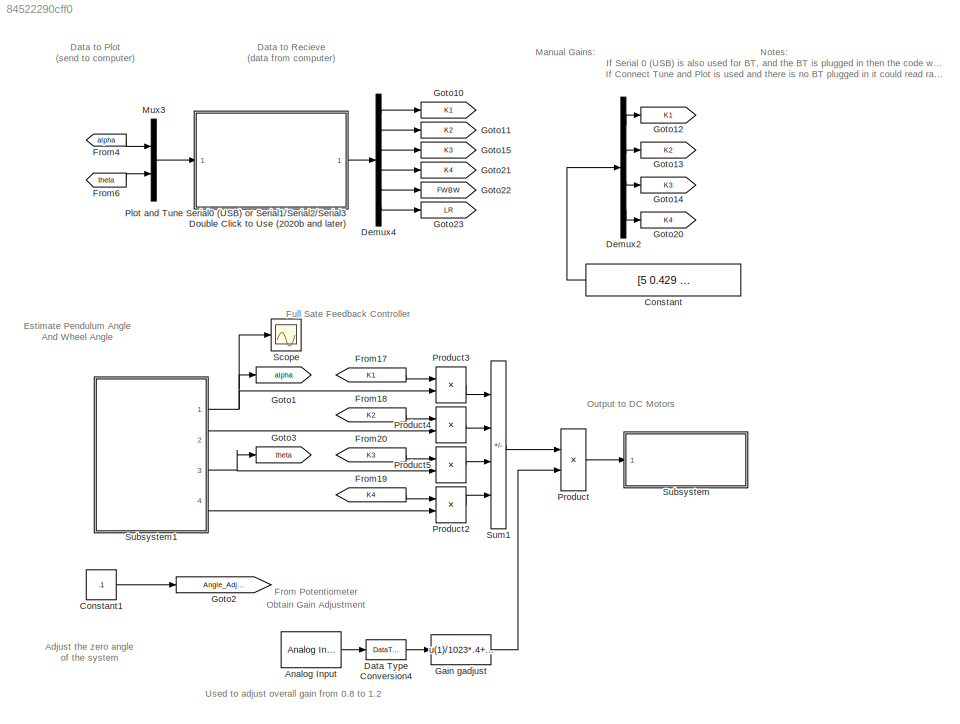
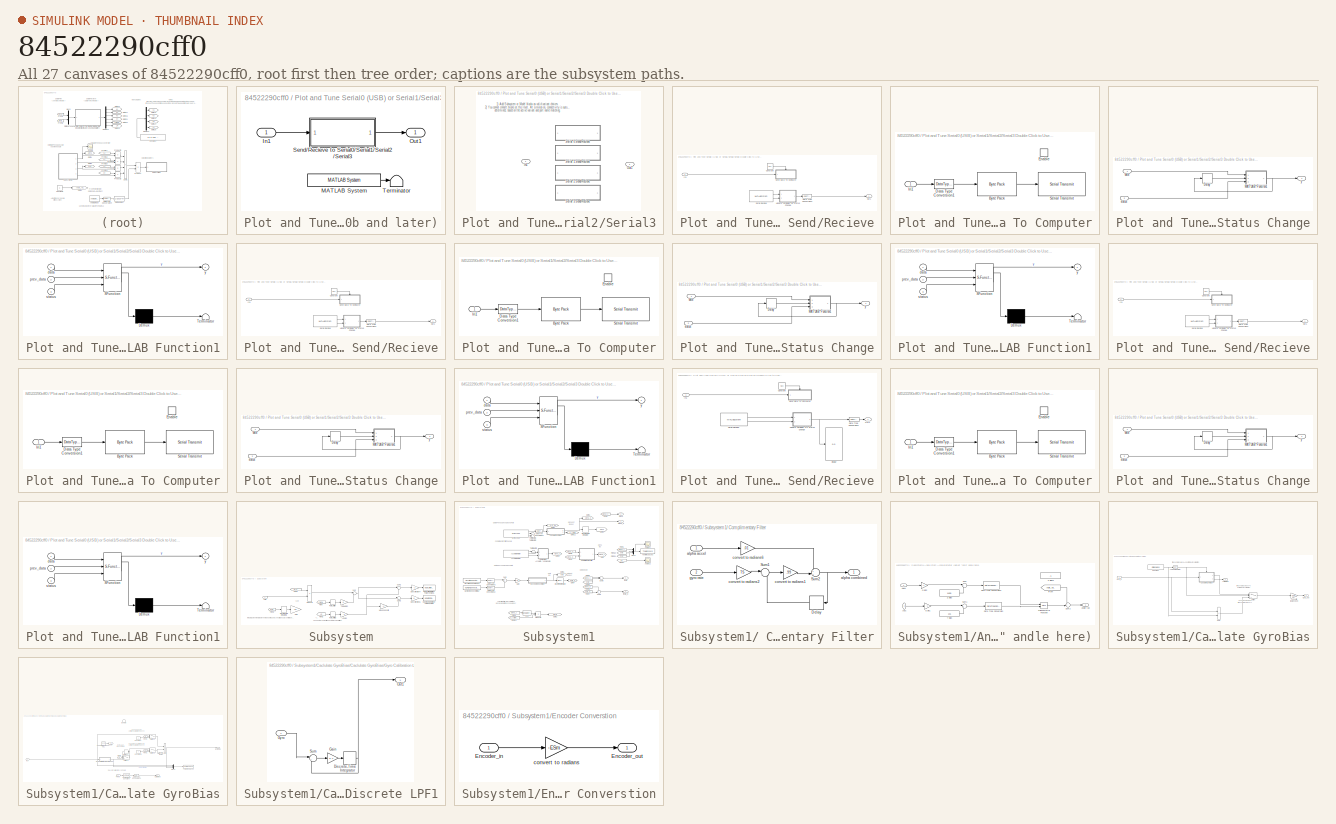
[diagram: thumbnail index - all 27 canvases of the model, root first then tree order]
MODEL slx_84522290cff0
KIND model
CONFIG AbsTol = auto
CONFIG EnableMultiTasking = on
CONFIG FixedStep = auto
CONFIG MaxStep = auto
CONFIG MinStep = auto
CONFIG PostLoadFcn = TS=.007;\n
CONFIG RelTol = 1e-3
CONFIG SampleTimeConstraint = Unconstrained
CONFIG SolverName = ode45
CONFIG StartTime = 0.0
CONFIG StopTime = 10.0
BLOCK [Reference] Analog Input  REF=arduinolib/Analog Input
  Ports = [0, 1]
  SourceBlock = arduinolib/Analog Input
  SourceProductBaseCode = ARDUINO
  SourceType = Arduino Analog Input
BLOCK [Constant] Constant
  Commented = on
  NameLocation = top
  OutDataTypeStr = single
  Value = [5  0.429  0.048   0.32 ]
BLOCK [Constant] Constant1
  Value = .1
BLOCK [DataTypeConversion] Data Type Conversion4
  NameLocation = top
  OutDataTypeStr = single
  RndMeth = Floor
  SaturateOnIntegerOverflow = off
BLOCK [Demux] Demux2
  Commented = on
  Ports = [1, 4]
BLOCK [Demux] Demux4
  Outputs = 6
  Ports = [1, 6]
BLOCK [From] From17
  GotoTag = K1
BLOCK [From] From18
  GotoTag = K2
BLOCK [From] From19
  GotoTag = K4
BLOCK [From] From20
  GotoTag = K3
BLOCK [From] From4
  GotoTag = alpha
BLOCK [From] From6
  GotoTag = theta
  IconDisplay = Signal name
BLOCK [Fcn] Gain gadjust
  Expr = u(1)/1023*.4+.8
BLOCK [Goto] Goto1
  GotoTag = alpha
BLOCK [Goto] Goto10
  GotoTag = K1
BLOCK [Goto] Goto11
  GotoTag = K2
BLOCK [Goto] Goto12
  Commented = on
  GotoTag = K1
BLOCK [Goto] Goto13
  Commented = on
  GotoTag = K2
BLOCK [Goto] Goto14
  Commented = on
  GotoTag = K3
BLOCK [Goto] Goto15
  GotoTag = K3
BLOCK [Goto] Goto2
  GotoTag = Angle_Adjust
  TagVisibility = global
BLOCK [Goto] Goto20
  Commented = on
  GotoTag = K4
BLOCK [Goto] Goto21
  GotoTag = K4
BLOCK [Goto] Goto22
  GotoTag = FWBW
  TagVisibility = global
BLOCK [Goto] Goto23
  GotoTag = LR
  TagVisibility = global
BLOCK [Goto] Goto3
  GotoTag = theta
BLOCK [Mux] Mux3
  DisplayOption = bar
  Inputs = 2
  Ports = [2, 1]
BLOCK [SubSystem] Plot and Tune Serial0 (USB) or Serial1//Serial2//Serial3 Double Click to Use (2020b and later)
  Ports = [1, 1]
  RequestExecContextInheritance = off
BLOCK [Inport] Plot and Tune Serial0 (USB) or Serial1//Serial2//Serial3 Double Click to Use (2020b and later)/In1
BLOCK [Reference] Plot and Tune Serial0 (USB) or Serial1//Serial2//Serial3 Double Click to Use (2020b and later)/MATLAB System  REF=RASPlib/Double Click to
Plot Serial Data/MATLAB System
  Ports = [0, 1]
  SourceBlock = RASPlib/Double Click to\nPlot Serial Data/MATLAB System
  SourceProductName = Rensselaer Arduino Support Package
  SourceType = soSendDataStartString
BLOCK [Outport] Plot and Tune Serial0 (USB) or Serial1//Serial2//Serial3 Double Click to Use (2020b and later)/Out1
BLOCK [SubSystem] Plot and Tune Serial0 (USB) or Serial1//Serial2//Serial3 Double Click to Use (2020b and later)/Send//Recieve to Serial0//Serial1//Serial2//Serial3
  Ports = [1, 1]
  RequestExecContextInheritance = off
  Variant = on
BLOCK [Inport] Plot and Tune Serial0 (USB) or Serial1//Serial2//Serial3 Double Click to Use (2020b and later)/Send//Recieve to Serial0//Serial1//Serial2//Serial3/In1
BLOCK [Outport] Plot and Tune Serial0 (USB) or Serial1//Serial2//Serial3 Double Click to Use (2020b and later)/Send//Recieve to Serial0//Serial1//Serial2//Serial3/Out1
BLOCK [SubSystem] Plot and Tune Serial0 (USB) or Serial1//Serial2//Serial3 Double Click to Use (2020b and later)/Send//Recieve to Serial0//Serial1//Serial2//Serial3/Serial 0 Send//Recieve
  Ports = [1, 1]
  RequestExecContextInheritance = off
  VariantControl = Ard_Serial==0
BLOCK [Constant] Plot and Tune Serial0 (USB) or Serial1//Serial2//Serial3 Double Click to Use (2020b and later)/Send//Recieve to Serial0//Serial1//Serial2//Serial3/Serial 0 Send//Recieve/Constant
  Value = Ncx
BLOCK [DataTypeConversion] Plot and Tune Serial0 (USB) or Serial1//Serial2//Serial3 Double Click to Use (2020b and later)/Send//Recieve to Serial0//Serial1//Serial2//Serial3/Serial 0 Send//Recieve/Data Type Conversion4
  OutDataTypeStr = single
  RndMeth = Floor
  SaturateOnIntegerOverflow = off
BLOCK [Inport] Plot and Tune Serial0 (USB) or Serial1//Serial2//Serial3 Double Click to Use (2020b and later)/Send//Recieve to Serial0//Serial1//Serial2//Serial3/Serial 0 Send//Recieve/In1
BLOCK [Outport] Plot and Tune Serial0 (USB) or Serial1//Serial2//Serial3 Double Click to Use (2020b and later)/Send//Recieve to Serial0//Serial1//Serial2//Serial3/Serial 0 Send//Recieve/Out1
BLOCK [SubSystem] Plot and Tune Serial0 (USB) or Serial1//Serial2//Serial3 Double Click to Use (2020b and later)/Send//Recieve to Serial0//Serial1//Serial2//Serial3/Serial 0 Send//Recieve/Send Data To Computer
  Ports = [1, 0, 1]
  RequestExecContextInheritance = off
  TreatAsAtomicUnit = on
BLOCK [Reference] Plot and Tune Serial0 (USB) or Serial1//Serial2//Serial3 Double Click to Use (2020b and later)/Send//Recieve to Serial0//Serial1//Serial2//Serial3/Serial 0 Send//Recieve/Send Data To Computer/Byte Pack  REF=svdutilitieslib/Byte Pack
  Ports = [1, 1]
  SourceBlock = svdutilitieslib/Byte Pack
  SourceProductBaseCode = ANDROID,ARDUINO,ML_ARDUINO,ECCORTEXA,ECCORTEXR,SC_BEAGLEBONE_BLUE,EC_FREEDOM_BOARD,EC_FRDM_K64F,INTEL_BLOCKSET,JETSONCPU,MICROBIT,NUCLEO,NVIDIA,PX4AUTOPILOTS,RASPPIIO,STMICRODIS,TIC2000,XILINX_BLOCKSET  <repeated x4 — deduplicated; at blocks: Byte Pack>
  SourceType = Byte pack
BLOCK [DataTypeConversion] Plot and Tune Serial0 (USB) or Serial1//Serial2//Serial3 Double Click to Use (2020b and later)/Send//Recieve to Serial0//Serial1//Serial2//Serial3/Serial 0 Send//Recieve/Send Data To Computer/Data Type Conversion1
  OutDataTypeStr = single
  RndMeth = Floor
  SaturateOnIntegerOverflow = off
BLOCK [EnablePort] Plot and Tune Serial0 (USB) or Serial1//Serial2//Serial3 Double Click to Use (2020b and later)/Send//Recieve to Serial0//Serial1//Serial2//Serial3/Serial 0 Send//Recieve/Send Data To Computer/Enable
  Ports = []
BLOCK [Inport] Plot and Tune Serial0 (USB) or Serial1//Serial2//Serial3 Double Click to Use (2020b and later)/Send//Recieve to Serial0//Serial1//Serial2//Serial3/Serial 0 Send//Recieve/Send Data To Computer/In1
BLOCK [Reference] Plot and Tune Serial0 (USB) or Serial1//Serial2//Serial3 Double Click to Use (2020b and later)/Send//Recieve to Serial0//Serial1//Serial2//Serial3/Serial 0 Send//Recieve/Send Data To Computer/Serial Transmit  REF=arduinolib/Serial Transmit
  Ports = [1]
  SourceBlock = arduinolib/Serial Transmit
  SourceProductBaseCode = ARDUINO
  SourceType = Arduino Serial Transmit
BLOCK [MATLABSystem] Plot and Tune Serial0 (USB) or Serial1//Serial2//Serial3 Double Click to Use (2020b and later)/Send//Recieve to Serial0//Serial1//Serial2//Serial3/Serial 0 Send//Recieve/Serial Receive
  DataType = double
  Datalength = Datalength
  InitFcn = %codertarget.arduinobase.blocks.arduinoBlockInitFcnCallback(gcbh);\n%codertarget.arduinobase.blocks.registerSerialBlock(gcbh);
  MaskDisplay = disp('codertarget.arduinobase.internal.arduino_SerialRead');\nport_label('output',1,'data');\nport_label('output',2,'status');
  MaskType = Arduino Serial Receive
  Ports = [0, 2]
  Protocol = 0
  SampleTime = SampleTime
  System = codertarget.arduinobase.internal.arduino_SerialRead
  isARMArch = off
  portNumber = portNumber
BLOCK [SubSystem] Plot and Tune Serial0 (USB) or Serial1//Serial2//Serial3 Double Click to Use (2020b and later)/Send//Recieve to Serial0//Serial1//Serial2//Serial3/Serial 0 Send//Recieve/Update  Variables On Status Change
  Ports = [2, 1]
  RequestExecContextInheritance = off
BLOCK [Delay] Plot and Tune Serial0 (USB) or Serial1//Serial2//Serial3 Double Click to Use (2020b and later)/Send//Recieve to Serial0//Serial1//Serial2//Serial3/Serial 0 Send//Recieve/Update  Variables On Status Change/Delay
  DelayLength = 1
  InitialCondition = Data0
  InputPortMap = u0
  Ports = [1, 1]
BLOCK [SubSystem] Plot and Tune Serial0 (USB) or Serial1//Serial2//Serial3 Double Click to Use (2020b and later)/Send//Recieve to Serial0//Serial1//Serial2//Serial3/Serial 0 Send//Recieve/Update  Variables On Status Change/MATLAB Function1
  ErrorFcn = Stateflow.Translate.translate
  PermitHierarchicalResolution = ExplicitOnly
  Ports = [3, 1]
  RequestExecContextInheritance = off
  SFBlockType = MATLAB Function
  TreatAsAtomicUnit = on
BLOCK [Demux] Plot and Tune Serial0 (USB) or Serial1//Serial2//Serial3 Double Click to Use (2020b and later)/Send//Recieve to Serial0//Serial1//Serial2//Serial3/Serial 0 Send//Recieve/Update  Variables On Status Change/MATLAB Function1/ Demux 
  Outputs = 1
  Ports = [1, 1]
BLOCK [S-Function] Plot and Tune Serial0 (USB) or Serial1//Serial2//Serial3 Double Click to Use (2020b and later)/Send//Recieve to Serial0//Serial1//Serial2//Serial3/Serial 0 Send//Recieve/Update  Variables On Status Change/MATLAB Function1/ SFunction 
  EnableBusSupport = on
  FunctionName = sf_sfun
  PortCounts = [3 2]
  Ports = [3, 2]
  SFcnIsStateOwnerBlock = off
  SFunctionDeploymentMode = off
  Tag = Stateflow S-Function 1
BLOCK [Terminator] Plot and Tune Serial0 (USB) or Serial1//Serial2//Serial3 Double Click to Use (2020b and later)/Send//Recieve to Serial0//Serial1//Serial2//Serial3/Serial 0 Send//Recieve/Update  Variables On Status Change/MATLAB Function1/ Terminator 
BLOCK [Inport] Plot and Tune Serial0 (USB) or Serial1//Serial2//Serial3 Double Click to Use (2020b and later)/Send//Recieve to Serial0//Serial1//Serial2//Serial3/Serial 0 Send//Recieve/Update  Variables On Status Change/MATLAB Function1/data
BLOCK [Inport] Plot and Tune Serial0 (USB) or Serial1//Serial2//Serial3 Double Click to Use (2020b and later)/Send//Recieve to Serial0//Serial1//Serial2//Serial3/Serial 0 Send//Recieve/Update  Variables On Status Change/MATLAB Function1/prev_data
  Port = 2
BLOCK [Inport] Plot and Tune Serial0 (USB) or Serial1//Serial2//Serial3 Double Click to Use (2020b and later)/Send//Recieve to Serial0//Serial1//Serial2//Serial3/Serial 0 Send//Recieve/Update  Variables On Status Change/MATLAB Function1/status
  Port = 3
BLOCK [Outport] Plot and Tune Serial0 (USB) or Serial1//Serial2//Serial3 Double Click to Use (2020b and later)/Send//Recieve to Serial0//Serial1//Serial2//Serial3/Serial 0 Send//Recieve/Update  Variables On Status Change/MATLAB Function1/y
BLOCK [Inport] Plot and Tune Serial0 (USB) or Serial1//Serial2//Serial3 Double Click to Use (2020b and later)/Send//Recieve to Serial0//Serial1//Serial2//Serial3/Serial 0 Send//Recieve/Update  Variables On Status Change/data
BLOCK [Inport] Plot and Tune Serial0 (USB) or Serial1//Serial2//Serial3 Double Click to Use (2020b and later)/Send//Recieve to Serial0//Serial1//Serial2//Serial3/Serial 0 Send//Recieve/Update  Variables On Status Change/status
  Port = 2
BLOCK [Outport] Plot and Tune Serial0 (USB) or Serial1//Serial2//Serial3 Double Click to Use (2020b and later)/Send//Recieve to Serial0//Serial1//Serial2//Serial3/Serial 0 Send//Recieve/Update  Variables On Status Change/y
BLOCK [SubSystem] Plot and Tune Serial0 (USB) or Serial1//Serial2//Serial3 Double Click to Use (2020b and later)/Send//Recieve to Serial0//Serial1//Serial2//Serial3/Serial 1 Send//Recieve
  Ports = [1, 1]
  RequestExecContextInheritance = off
  VariantControl = Ard_Serial==1
BLOCK [Constant] Plot and Tune Serial0 (USB) or Serial1//Serial2//Serial3 Double Click to Use (2020b and later)/Send//Recieve to Serial0//Serial1//Serial2//Serial3/Serial 1 Send//Recieve/Constant
  Value = Ncx
BLOCK [DataTypeConversion] Plot and Tune Serial0 (USB) or Serial1//Serial2//Serial3 Double Click to Use (2020b and later)/Send//Recieve to Serial0//Serial1//Serial2//Serial3/Serial 1 Send//Recieve/Data Type Conversion4
  OutDataTypeStr = single
  RndMeth = Floor
  SaturateOnIntegerOverflow = off
BLOCK [Inport] Plot and Tune Serial0 (USB) or Serial1//Serial2//Serial3 Double Click to Use (2020b and later)/Send//Recieve to Serial0//Serial1//Serial2//Serial3/Serial 1 Send//Recieve/In1
BLOCK [Outport] Plot and Tune Serial0 (USB) or Serial1//Serial2//Serial3 Double Click to Use (2020b and later)/Send//Recieve to Serial0//Serial1//Serial2//Serial3/Serial 1 Send//Recieve/Out1
BLOCK [SubSystem] Plot and Tune Serial0 (USB) or Serial1//Serial2//Serial3 Double Click to Use (2020b and later)/Send//Recieve to Serial0//Serial1//Serial2//Serial3/Serial 1 Send//Recieve/Send Data To Computer
  Ports = [1, 0, 1]
  RequestExecContextInheritance = off
  TreatAsAtomicUnit = on
BLOCK [Reference] Plot and Tune Serial0 (USB) or Serial1//Serial2//Serial3 Double Click to Use (2020b and later)/Send//Recieve to Serial0//Serial1//Serial2//Serial3/Serial 1 Send//Recieve/Send Data To Computer/Byte Pack  REF=svdutilitieslib/Byte Pack
  Ports = [1, 1]
  SourceBlock = svdutilitieslib/Byte Pack
  SourceType = Byte pack
BLOCK [DataTypeConversion] Plot and Tune Serial0 (USB) or Serial1//Serial2//Serial3 Double Click to Use (2020b and later)/Send//Recieve to Serial0//Serial1//Serial2//Serial3/Serial 1 Send//Recieve/Send Data To Computer/Data Type Conversion1
  OutDataTypeStr = single
  RndMeth = Floor
  SaturateOnIntegerOverflow = off
BLOCK [EnablePort] Plot and Tune Serial0 (USB) or Serial1//Serial2//Serial3 Double Click to Use (2020b and later)/Send//Recieve to Serial0//Serial1//Serial2//Serial3/Serial 1 Send//Recieve/Send Data To Computer/Enable
  Ports = []
BLOCK [Inport] Plot and Tune Serial0 (USB) or Serial1//Serial2//Serial3 Double Click to Use (2020b and later)/Send//Recieve to Serial0//Serial1//Serial2//Serial3/Serial 1 Send//Recieve/Send Data To Computer/In1
BLOCK [Reference] Plot and Tune Serial0 (USB) or Serial1//Serial2//Serial3 Double Click to Use (2020b and later)/Send//Recieve to Serial0//Serial1//Serial2//Serial3/Serial 1 Send//Recieve/Send Data To Computer/Serial Transmit  REF=arduinolib/Serial Transmit
  Ports = [1]
  SourceBlock = arduinolib/Serial Transmit
  SourceProductBaseCode = ARDUINO
  SourceType = Arduino Serial Transmit
BLOCK [MATLABSystem] Plot and Tune Serial0 (USB) or Serial1//Serial2//Serial3 Double Click to Use (2020b and later)/Send//Recieve to Serial0//Serial1//Serial2//Serial3/Serial 1 Send//Recieve/Serial Receive
  DataType = double
  Datalength = Datalength
  InitFcn = %codertarget.arduinobase.blocks.arduinoBlockInitFcnCallback(gcbh);\n%codertarget.arduinobase.blocks.registerSerialBlock(gcbh);
  MaskDisplay = disp('codertarget.arduinobase.internal.arduino_SerialRead');\nport_label('output',1,'data');\nport_label('output',2,'status');
  MaskType = Arduino Serial Receive
  Ports = [0, 2]
  Protocol = 0
  SampleTime = SampleTime
  System = codertarget.arduinobase.internal.arduino_SerialRead
  isARMArch = off
  portNumber = portNumber
BLOCK [SubSystem] Plot and Tune Serial0 (USB) or Serial1//Serial2//Serial3 Double Click to Use (2020b and later)/Send//Recieve to Serial0//Serial1//Serial2//Serial3/Serial 1 Send//Recieve/Update  Variables On Status Change
  Ports = [2, 1]
  RequestExecContextInheritance = off
BLOCK [Delay] Plot and Tune Serial0 (USB) or Serial1//Serial2//Serial3 Double Click to Use (2020b and later)/Send//Recieve to Serial0//Serial1//Serial2//Serial3/Serial 1 Send//Recieve/Update  Variables On Status Change/Delay
  DelayLength = 1
  InitialCondition = Data0
  InputPortMap = u0
  Ports = [1, 1]
  SampleTime = TS
BLOCK [SubSystem] Plot and Tune Serial0 (USB) or Serial1//Serial2//Serial3 Double Click to Use (2020b and later)/Send//Recieve to Serial0//Serial1//Serial2//Serial3/Serial 1 Send//Recieve/Update  Variables On Status Change/MATLAB Function1
  ErrorFcn = Stateflow.Translate.translate
  PermitHierarchicalResolution = ExplicitOnly
  Ports = [3, 1]
  RequestExecContextInheritance = off
  SFBlockType = MATLAB Function
  TreatAsAtomicUnit = on
BLOCK [Demux] Plot and Tune Serial0 (USB) or Serial1//Serial2//Serial3 Double Click to Use (2020b and later)/Send//Recieve to Serial0//Serial1//Serial2//Serial3/Serial 1 Send//Recieve/Update  Variables On Status Change/MATLAB Function1/ Demux 
  Outputs = 1
  Ports = [1, 1]
BLOCK [S-Function] Plot and Tune Serial0 (USB) or Serial1//Serial2//Serial3 Double Click to Use (2020b and later)/Send//Recieve to Serial0//Serial1//Serial2//Serial3/Serial 1 Send//Recieve/Update  Variables On Status Change/MATLAB Function1/ SFunction 
  EnableBusSupport = on
  FunctionName = sf_sfun
  PortCounts = [3 2]
  Ports = [3, 2]
  SFcnIsStateOwnerBlock = off
  SFunctionDeploymentMode = off
  Tag = Stateflow S-Function 2
BLOCK [Terminator] Plot and Tune Serial0 (USB) or Serial1//Serial2//Serial3 Double Click to Use (2020b and later)/Send//Recieve to Serial0//Serial1//Serial2//Serial3/Serial 1 Send//Recieve/Update  Variables On Status Change/MATLAB Function1/ Terminator 
BLOCK [Inport] Plot and Tune Serial0 (USB) or Serial1//Serial2//Serial3 Double Click to Use (2020b and later)/Send//Recieve to Serial0//Serial1//Serial2//Serial3/Serial 1 Send//Recieve/Update  Variables On Status Change/MATLAB Function1/data
BLOCK [Inport] Plot and Tune Serial0 (USB) or Serial1//Serial2//Serial3 Double Click to Use (2020b and later)/Send//Recieve to Serial0//Serial1//Serial2//Serial3/Serial 1 Send//Recieve/Update  Variables On Status Change/MATLAB Function1/prev_data
  Port = 2
BLOCK [Inport] Plot and Tune Serial0 (USB) or Serial1//Serial2//Serial3 Double Click to Use (2020b and later)/Send//Recieve to Serial0//Serial1//Serial2//Serial3/Serial 1 Send//Recieve/Update  Variables On Status Change/MATLAB Function1/status
  Port = 3
BLOCK [Outport] Plot and Tune Serial0 (USB) or Serial1//Serial2//Serial3 Double Click to Use (2020b and later)/Send//Recieve to Serial0//Serial1//Serial2//Serial3/Serial 1 Send//Recieve/Update  Variables On Status Change/MATLAB Function1/y
BLOCK [Inport] Plot and Tune Serial0 (USB) or Serial1//Serial2//Serial3 Double Click to Use (2020b and later)/Send//Recieve to Serial0//Serial1//Serial2//Serial3/Serial 1 Send//Recieve/Update  Variables On Status Change/data
BLOCK [Inport] Plot and Tune Serial0 (USB) or Serial1//Serial2//Serial3 Double Click to Use (2020b and later)/Send//Recieve to Serial0//Serial1//Serial2//Serial3/Serial 1 Send//Recieve/Update  Variables On Status Change/status
  Port = 2
BLOCK [Outport] Plot and Tune Serial0 (USB) or Serial1//Serial2//Serial3 Double Click to Use (2020b and later)/Send//Recieve to Serial0//Serial1//Serial2//Serial3/Serial 1 Send//Recieve/Update  Variables On Status Change/y
BLOCK [SubSystem] Plot and Tune Serial0 (USB) or Serial1//Serial2//Serial3 Double Click to Use (2020b and later)/Send//Recieve to Serial0//Serial1//Serial2//Serial3/Serial 2 Send//Recieve
  Ports = [1, 1]
  RequestExecContextInheritance = off
  VariantControl = Ard_Serial==2
BLOCK [Constant] Plot and Tune Serial0 (USB) or Serial1//Serial2//Serial3 Double Click to Use (2020b and later)/Send//Recieve to Serial0//Serial1//Serial2//Serial3/Serial 2 Send//Recieve/Constant
  Value = Ncx
BLOCK [DataTypeConversion] Plot and Tune Serial0 (USB) or Serial1//Serial2//Serial3 Double Click to Use (2020b and later)/Send//Recieve to Serial0//Serial1//Serial2//Serial3/Serial 2 Send//Recieve/Data Type Conversion4
  OutDataTypeStr = single
  RndMeth = Floor
  SaturateOnIntegerOverflow = off
BLOCK [Inport] Plot and Tune Serial0 (USB) or Serial1//Serial2//Serial3 Double Click to Use (2020b and later)/Send//Recieve to Serial0//Serial1//Serial2//Serial3/Serial 2 Send//Recieve/In1
BLOCK [Outport] Plot and Tune Serial0 (USB) or Serial1//Serial2//Serial3 Double Click to Use (2020b and later)/Send//Recieve to Serial0//Serial1//Serial2//Serial3/Serial 2 Send//Recieve/Out1
BLOCK [SubSystem] Plot and Tune Serial0 (USB) or Serial1//Serial2//Serial3 Double Click to Use (2020b and later)/Send//Recieve to Serial0//Serial1//Serial2//Serial3/Serial 2 Send//Recieve/Send Data To Computer
  Ports = [1, 0, 1]
  RequestExecContextInheritance = off
  TreatAsAtomicUnit = on
BLOCK [Reference] Plot and Tune Serial0 (USB) or Serial1//Serial2//Serial3 Double Click to Use (2020b and later)/Send//Recieve to Serial0//Serial1//Serial2//Serial3/Serial 2 Send//Recieve/Send Data To Computer/Byte Pack  REF=svdutilitieslib/Byte Pack
  Ports = [1, 1]
  SourceBlock = svdutilitieslib/Byte Pack
  SourceType = Byte pack
BLOCK [DataTypeConversion] Plot and Tune Serial0 (USB) or Serial1//Serial2//Serial3 Double Click to Use (2020b and later)/Send//Recieve to Serial0//Serial1//Serial2//Serial3/Serial 2 Send//Recieve/Send Data To Computer/Data Type Conversion1
  OutDataTypeStr = single
  RndMeth = Floor
  SaturateOnIntegerOverflow = off
BLOCK [EnablePort] Plot and Tune Serial0 (USB) or Serial1//Serial2//Serial3 Double Click to Use (2020b and later)/Send//Recieve to Serial0//Serial1//Serial2//Serial3/Serial 2 Send//Recieve/Send Data To Computer/Enable
  Ports = []
BLOCK [Inport] Plot and Tune Serial0 (USB) or Serial1//Serial2//Serial3 Double Click to Use (2020b and later)/Send//Recieve to Serial0//Serial1//Serial2//Serial3/Serial 2 Send//Recieve/Send Data To Computer/In1
BLOCK [Reference] Plot and Tune Serial0 (USB) or Serial1//Serial2//Serial3 Double Click to Use (2020b and later)/Send//Recieve to Serial0//Serial1//Serial2//Serial3/Serial 2 Send//Recieve/Send Data To Computer/Serial Transmit  REF=arduinolib/Serial Transmit
  Ports = [1]
  SourceBlock = arduinolib/Serial Transmit
  SourceProductBaseCode = ARDUINO
  SourceType = Arduino Serial Transmit
BLOCK [MATLABSystem] Plot and Tune Serial0 (USB) or Serial1//Serial2//Serial3 Double Click to Use (2020b and later)/Send//Recieve to Serial0//Serial1//Serial2//Serial3/Serial 2 Send//Recieve/Serial Receive
  DataType = double
  Datalength = Datalength
  InitFcn = %codertarget.arduinobase.blocks.arduinoBlockInitFcnCallback(gcbh);\n%codertarget.arduinobase.blocks.registerSerialBlock(gcbh);
  MaskDisplay = disp('codertarget.arduinobase.internal.arduino_SerialRead');\nport_label('output',1,'data');\nport_label('output',2,'status');
  MaskType = Arduino Serial Receive
  Ports = [0, 2]
  Protocol = 0
  SampleTime = SampleTime
  System = codertarget.arduinobase.internal.arduino_SerialRead
  isARMArch = off
  portNumber = portNumber
BLOCK [SubSystem] Plot and Tune Serial0 (USB) or Serial1//Serial2//Serial3 Double Click to Use (2020b and later)/Send//Recieve to Serial0//Serial1//Serial2//Serial3/Serial 2 Send//Recieve/Update  Variables On Status Change
  Ports = [2, 1]
  RequestExecContextInheritance = off
BLOCK [Delay] Plot and Tune Serial0 (USB) or Serial1//Serial2//Serial3 Double Click to Use (2020b and later)/Send//Recieve to Serial0//Serial1//Serial2//Serial3/Serial 2 Send//Recieve/Update  Variables On Status Change/Delay
  DelayLength = 1
  InitialCondition = Data0
  InputPortMap = u0
  Ports = [1, 1]
  SampleTime = TS
BLOCK [SubSystem] Plot and Tune Serial0 (USB) or Serial1//Serial2//Serial3 Double Click to Use (2020b and later)/Send//Recieve to Serial0//Serial1//Serial2//Serial3/Serial 2 Send//Recieve/Update  Variables On Status Change/MATLAB Function1
  ErrorFcn = Stateflow.Translate.translate
  PermitHierarchicalResolution = ExplicitOnly
  Ports = [3, 1]
  RequestExecContextInheritance = off
  SFBlockType = MATLAB Function
  TreatAsAtomicUnit = on
BLOCK [Demux] Plot and Tune Serial0 (USB) or Serial1//Serial2//Serial3 Double Click to Use (2020b and later)/Send//Recieve to Serial0//Serial1//Serial2//Serial3/Serial 2 Send//Recieve/Update  Variables On Status Change/MATLAB Function1/ Demux 
  Outputs = 1
  Ports = [1, 1]
BLOCK [S-Function] Plot and Tune Serial0 (USB) or Serial1//Serial2//Serial3 Double Click to Use (2020b and later)/Send//Recieve to Serial0//Serial1//Serial2//Serial3/Serial 2 Send//Recieve/Update  Variables On Status Change/MATLAB Function1/ SFunction 
  EnableBusSupport = on
  FunctionName = sf_sfun
  PortCounts = [3 2]
  Ports = [3, 2]
  SFcnIsStateOwnerBlock = off
  SFunctionDeploymentMode = off
  Tag = Stateflow S-Function 3
BLOCK [Terminator] Plot and Tune Serial0 (USB) or Serial1//Serial2//Serial3 Double Click to Use (2020b and later)/Send//Recieve to Serial0//Serial1//Serial2//Serial3/Serial 2 Send//Recieve/Update  Variables On Status Change/MATLAB Function1/ Terminator 
BLOCK [Inport] Plot and Tune Serial0 (USB) or Serial1//Serial2//Serial3 Double Click to Use (2020b and later)/Send//Recieve to Serial0//Serial1//Serial2//Serial3/Serial 2 Send//Recieve/Update  Variables On Status Change/MATLAB Function1/data
BLOCK [Inport] Plot and Tune Serial0 (USB) or Serial1//Serial2//Serial3 Double Click to Use (2020b and later)/Send//Recieve to Serial0//Serial1//Serial2//Serial3/Serial 2 Send//Recieve/Update  Variables On Status Change/MATLAB Function1/prev_data
  Port = 2
BLOCK [Inport] Plot and Tune Serial0 (USB) or Serial1//Serial2//Serial3 Double Click to Use (2020b and later)/Send//Recieve to Serial0//Serial1//Serial2//Serial3/Serial 2 Send//Recieve/Update  Variables On Status Change/MATLAB Function1/status
  Port = 3
BLOCK [Outport] Plot and Tune Serial0 (USB) or Serial1//Serial2//Serial3 Double Click to Use (2020b and later)/Send//Recieve to Serial0//Serial1//Serial2//Serial3/Serial 2 Send//Recieve/Update  Variables On Status Change/MATLAB Function1/y
BLOCK [Inport] Plot and Tune Serial0 (USB) or Serial1//Serial2//Serial3 Double Click to Use (2020b and later)/Send//Recieve to Serial0//Serial1//Serial2//Serial3/Serial 2 Send//Recieve/Update  Variables On Status Change/data
BLOCK [Inport] Plot and Tune Serial0 (USB) or Serial1//Serial2//Serial3 Double Click to Use (2020b and later)/Send//Recieve to Serial0//Serial1//Serial2//Serial3/Serial 2 Send//Recieve/Update  Variables On Status Change/status
  Port = 2
BLOCK [Outport] Plot and Tune Serial0 (USB) or Serial1//Serial2//Serial3 Double Click to Use (2020b and later)/Send//Recieve to Serial0//Serial1//Serial2//Serial3/Serial 2 Send//Recieve/Update  Variables On Status Change/y
BLOCK [SubSystem] Plot and Tune Serial0 (USB) or Serial1//Serial2//Serial3 Double Click to Use (2020b and later)/Send//Recieve to Serial0//Serial1//Serial2//Serial3/Serial 3 Send//Recieve
  Ports = [1, 1]
  RequestExecContextInheritance = off
  VariantControl = Ard_Serial==3
BLOCK [Constant] Plot and Tune Serial0 (USB) or Serial1//Serial2//Serial3 Double Click to Use (2020b and later)/Send//Recieve to Serial0//Serial1//Serial2//Serial3/Serial 3 Send//Recieve/Constant
  Value = Ncx
BLOCK [DataTypeConversion] Plot and Tune Serial0 (USB) or Serial1//Serial2//Serial3 Double Click to Use (2020b and later)/Send//Recieve to Serial0//Serial1//Serial2//Serial3/Serial 3 Send//Recieve/Data Type Conversion4
  OutDataTypeStr = single
  RndMeth = Floor
  SaturateOnIntegerOverflow = off
BLOCK [Display] Plot and Tune Serial0 (USB) or Serial1//Serial2//Serial3 Double Click to Use (2020b and later)/Send//Recieve to Serial0//Serial1//Serial2//Serial3/Serial 3 Send//Recieve/Display
  Commented = on
  Decimation = 1
  Ports = [1]
BLOCK [Inport] Plot and Tune Serial0 (USB) or Serial1//Serial2//Serial3 Double Click to Use (2020b and later)/Send//Recieve to Serial0//Serial1//Serial2//Serial3/Serial 3 Send//Recieve/In1
BLOCK [Outport] Plot and Tune Serial0 (USB) or Serial1//Serial2//Serial3 Double Click to Use (2020b and later)/Send//Recieve to Serial0//Serial1//Serial2//Serial3/Serial 3 Send//Recieve/Out1
BLOCK [SubSystem] Plot and Tune Serial0 (USB) or Serial1//Serial2//Serial3 Double Click to Use (2020b and later)/Send//Recieve to Serial0//Serial1//Serial2//Serial3/Serial 3 Send//Recieve/Send Data To Computer
  Ports = [1, 0, 1]
  RequestExecContextInheritance = off
  TreatAsAtomicUnit = on
BLOCK [Reference] Plot and Tune Serial0 (USB) or Serial1//Serial2//Serial3 Double Click to Use (2020b and later)/Send//Recieve to Serial0//Serial1//Serial2//Serial3/Serial 3 Send//Recieve/Send Data To Computer/Byte Pack  REF=svdutilitieslib/Byte Pack
  Ports = [1, 1]
  SourceBlock = svdutilitieslib/Byte Pack
  SourceType = Byte pack
BLOCK [DataTypeConversion] Plot and Tune Serial0 (USB) or Serial1//Serial2//Serial3 Double Click to Use (2020b and later)/Send//Recieve to Serial0//Serial1//Serial2//Serial3/Serial 3 Send//Recieve/Send Data To Computer/Data Type Conversion1
  OutDataTypeStr = single
  RndMeth = Floor
  SaturateOnIntegerOverflow = off
BLOCK [EnablePort] Plot and Tune Serial0 (USB) or Serial1//Serial2//Serial3 Double Click to Use (2020b and later)/Send//Recieve to Serial0//Serial1//Serial2//Serial3/Serial 3 Send//Recieve/Send Data To Computer/Enable
  Ports = []
BLOCK [Inport] Plot and Tune Serial0 (USB) or Serial1//Serial2//Serial3 Double Click to Use (2020b and later)/Send//Recieve to Serial0//Serial1//Serial2//Serial3/Serial 3 Send//Recieve/Send Data To Computer/In1
BLOCK [Reference] Plot and Tune Serial0 (USB) or Serial1//Serial2//Serial3 Double Click to Use (2020b and later)/Send//Recieve to Serial0//Serial1//Serial2//Serial3/Serial 3 Send//Recieve/Send Data To Computer/Serial Transmit  REF=arduinolib/Serial Transmit
  Ports = [1]
  SourceBlock = arduinolib/Serial Transmit
  SourceProductBaseCode = ARDUINO
  SourceType = Arduino Serial Transmit
BLOCK [MATLABSystem] Plot and Tune Serial0 (USB) or Serial1//Serial2//Serial3 Double Click to Use (2020b and later)/Send//Recieve to Serial0//Serial1//Serial2//Serial3/Serial 3 Send//Recieve/Serial Receive
  DataType = double
  Datalength = Datalength
  InitFcn = %codertarget.arduinobase.blocks.arduinoBlockInitFcnCallback(gcbh);\n%codertarget.arduinobase.blocks.registerSerialBlock(gcbh);
  MaskDisplay = disp('codertarget.arduinobase.internal.arduino_SerialRead');\nport_label('output',1,'data');\nport_label('output',2,'status');
  MaskType = Arduino Serial Receive
  Ports = [0, 2]
  Protocol = 0
  SampleTime = SampleTime
  System = codertarget.arduinobase.internal.arduino_SerialRead
  isARMArch = off
  portNumber = portNumber
BLOCK [SubSystem] Plot and Tune Serial0 (USB) or Serial1//Serial2//Serial3 Double Click to Use (2020b and later)/Send//Recieve to Serial0//Serial1//Serial2//Serial3/Serial 3 Send//Recieve/Update  Variables On Status Change
  Ports = [2, 1]
  RequestExecContextInheritance = off
BLOCK [Delay] Plot and Tune Serial0 (USB) or Serial1//Serial2//Serial3 Double Click to Use (2020b and later)/Send//Recieve to Serial0//Serial1//Serial2//Serial3/Serial 3 Send//Recieve/Update  Variables On Status Change/Delay
  DelayLength = 1
  InitialCondition = [Data0]
  InputPortMap = u0
  Ports = [1, 1]
  SampleTime = TS
BLOCK [SubSystem] Plot and Tune Serial0 (USB) or Serial1//Serial2//Serial3 Double Click to Use (2020b and later)/Send//Recieve to Serial0//Serial1//Serial2//Serial3/Serial 3 Send//Recieve/Update  Variables On Status Change/MATLAB Function1
  ErrorFcn = Stateflow.Translate.translate
  PermitHierarchicalResolution = ExplicitOnly
  Ports = [3, 1]
  RequestExecContextInheritance = off
  SFBlockType = MATLAB Function
  TreatAsAtomicUnit = on
BLOCK [Demux] Plot and Tune Serial0 (USB) or Serial1//Serial2//Serial3 Double Click to Use (2020b and later)/Send//Recieve to Serial0//Serial1//Serial2//Serial3/Serial 3 Send//Recieve/Update  Variables On Status Change/MATLAB Function1/ Demux 
  Outputs = 1
  Ports = [1, 1]
BLOCK [S-Function] Plot and Tune Serial0 (USB) or Serial1//Serial2//Serial3 Double Click to Use (2020b and later)/Send//Recieve to Serial0//Serial1//Serial2//Serial3/Serial 3 Send//Recieve/Update  Variables On Status Change/MATLAB Function1/ SFunction 
  EnableBusSupport = on
  FunctionName = sf_sfun
  PortCounts = [3 2]
  Ports = [3, 2]
  SFcnIsStateOwnerBlock = off
  SFunctionDeploymentMode = off
  Tag = Stateflow S-Function 8
BLOCK [Terminator] Plot and Tune Serial0 (USB) or Serial1//Serial2//Serial3 Double Click to Use (2020b and later)/Send//Recieve to Serial0//Serial1//Serial2//Serial3/Serial 3 Send//Recieve/Update  Variables On Status Change/MATLAB Function1/ Terminator 
BLOCK [Inport] Plot and Tune Serial0 (USB) or Serial1//Serial2//Serial3 Double Click to Use (2020b and later)/Send//Recieve to Serial0//Serial1//Serial2//Serial3/Serial 3 Send//Recieve/Update  Variables On Status Change/MATLAB Function1/data
BLOCK [Inport] Plot and Tune Serial0 (USB) or Serial1//Serial2//Serial3 Double Click to Use (2020b and later)/Send//Recieve to Serial0//Serial1//Serial2//Serial3/Serial 3 Send//Recieve/Update  Variables On Status Change/MATLAB Function1/prev_data
  Port = 2
BLOCK [Inport] Plot and Tune Serial0 (USB) or Serial1//Serial2//Serial3 Double Click to Use (2020b and later)/Send//Recieve to Serial0//Serial1//Serial2//Serial3/Serial 3 Send//Recieve/Update  Variables On Status Change/MATLAB Function1/status
  Port = 3
BLOCK [Outport] Plot and Tune Serial0 (USB) or Serial1//Serial2//Serial3 Double Click to Use (2020b and later)/Send//Recieve to Serial0//Serial1//Serial2//Serial3/Serial 3 Send//Recieve/Update  Variables On Status Change/MATLAB Function1/y
BLOCK [Inport] Plot and Tune Serial0 (USB) or Serial1//Serial2//Serial3 Double Click to Use (2020b and later)/Send//Recieve to Serial0//Serial1//Serial2//Serial3/Serial 3 Send//Recieve/Update  Variables On Status Change/data
BLOCK [Inport] Plot and Tune Serial0 (USB) or Serial1//Serial2//Serial3 Double Click to Use (2020b and later)/Send//Recieve to Serial0//Serial1//Serial2//Serial3/Serial 3 Send//Recieve/Update  Variables On Status Change/status
  Port = 2
BLOCK [Outport] Plot and Tune Serial0 (USB) or Serial1//Serial2//Serial3 Double Click to Use (2020b and later)/Send//Recieve to Serial0//Serial1//Serial2//Serial3/Serial 3 Send//Recieve/Update  Variables On Status Change/y
BLOCK [Terminator] Plot and Tune Serial0 (USB) or Serial1//Serial2//Serial3 Double Click to Use (2020b and later)/Terminator
BLOCK [Product] Product
  Ports = [2, 1]
  RndMeth = Zero
BLOCK [Product] Product2
  Ports = [2, 1]
BLOCK [Product] Product3
  Ports = [2, 1]
BLOCK [Product] Product4
  Ports = [2, 1]
BLOCK [Product] Product5
  Ports = [2, 1]
BLOCK [Scope] Scope
  Floating = off
  NumInputPorts = 1
  Ports = [1]
  ScopeSpecificationString = Simulink.scopes.TimeScopeBlockCfg('CurrentConfiguration', extmgr.ConfigurationSet(extmgr.Configuration('Core','General UI',true),extmgr.Configuration('Core','Source UI',true),extmgr.Configuration('Sources','WiredSimulink',true,'DataLoggingVariableName','ScopeData1'),extmgr.Configuration('Visuals','Time Domain',true,'SerializedDisplays',{struct('MinYLimReal','-0.01756','MaxYLimReal','0.12621','YLab...<+1425ch>
BLOCK [SubSystem] Subsystem
  Ports = [1]
  RequestExecContextInheritance = off
BLOCK [DiscreteIntegrator] Subsystem/Discrete-Time Integrator1
  Commented = on
  ICPrevOutput = DiscIntNeverNeededParam
  ICPrevScaledInput = DiscIntNeverNeededParam
  Ports = [1, 1]
  SampleTime = TS
BLOCK [Gain] Subsystem/FBBW sign
  OutDataTypeStr = single
BLOCK [From] Subsystem/From
  GotoTag = FWBW
  TagVisibility = global
BLOCK [From] Subsystem/From1
  GotoTag = Mtr_off
  TagVisibility = global
BLOCK [From] Subsystem/From2
  GotoTag = LR
  TagVisibility = global
BLOCK [From] Subsystem/From3
  Commented = on
  GotoTag = theta
BLOCK [Gain] Subsystem/Gain
  Commented = on
  Gain = .01
  Multiplication = Matrix(K*u)
BLOCK [Gain] Subsystem/LR sign
  Gain = -1
  OutDataTypeStr = single
BLOCK [Reference] Subsystem/MSM Left Motor Driver PWM44, PWM45  REF=MinSegLibrary_MinSegMega/MSM Left Motor Driver
PWM44, PWM45
  Ports = [1]
  SourceBlock = MinSegLibrary_MinSegMega/MSM Left Motor Driver\nPWM44, PWM45
  SourceProductName = Rensselaer Arduino Support Package
BLOCK [Reference] Subsystem/MSM Right Motor Driver PWM46, PWM2   REF=MinSegLibrary_MinSegMega/MSM Right Motor Driver
PWM46, PWM2

  Ports = [1]
  SourceBlock = MinSegLibrary_MinSegMega/MSM Right Motor Driver\nPWM46, PWM2
  SourceProductName = Rensselaer Arduino Support Package
BLOCK [Gain] Subsystem/Make opposite 
  Gain = -1
  OutDataTypeStr = single
BLOCK [Product] Subsystem/Product1
  Ports = [2, 1]
  RndMeth = Zero
BLOCK [RateLimiter] Subsystem/Rate Limiter
  FallingSlewLimit = -2
  RisingSlewLimit = 2
  SampleTimeMode = inherited
BLOCK [RateLimiter] Subsystem/Rate Limiter1
  FallingSlewLimit = -2
  RisingSlewLimit = 2
  SampleTimeMode = inherited
BLOCK [Sum] Subsystem/Sum
  Inputs = |++
  Ports = [2, 1]
BLOCK [Sum] Subsystem/Sum1
  Inputs = |++
  Ports = [2, 1]
BLOCK [Sum] Subsystem/Sum2
  Inputs = |++
  Ports = [2, 1]
BLOCK [Inport] Subsystem/Volts
BLOCK [Gain] Subsystem/sign correction4
  Gain = -1
  OutDataTypeStr = single
BLOCK [Gain] Subsystem/sign correction5
  OutDataTypeStr = single
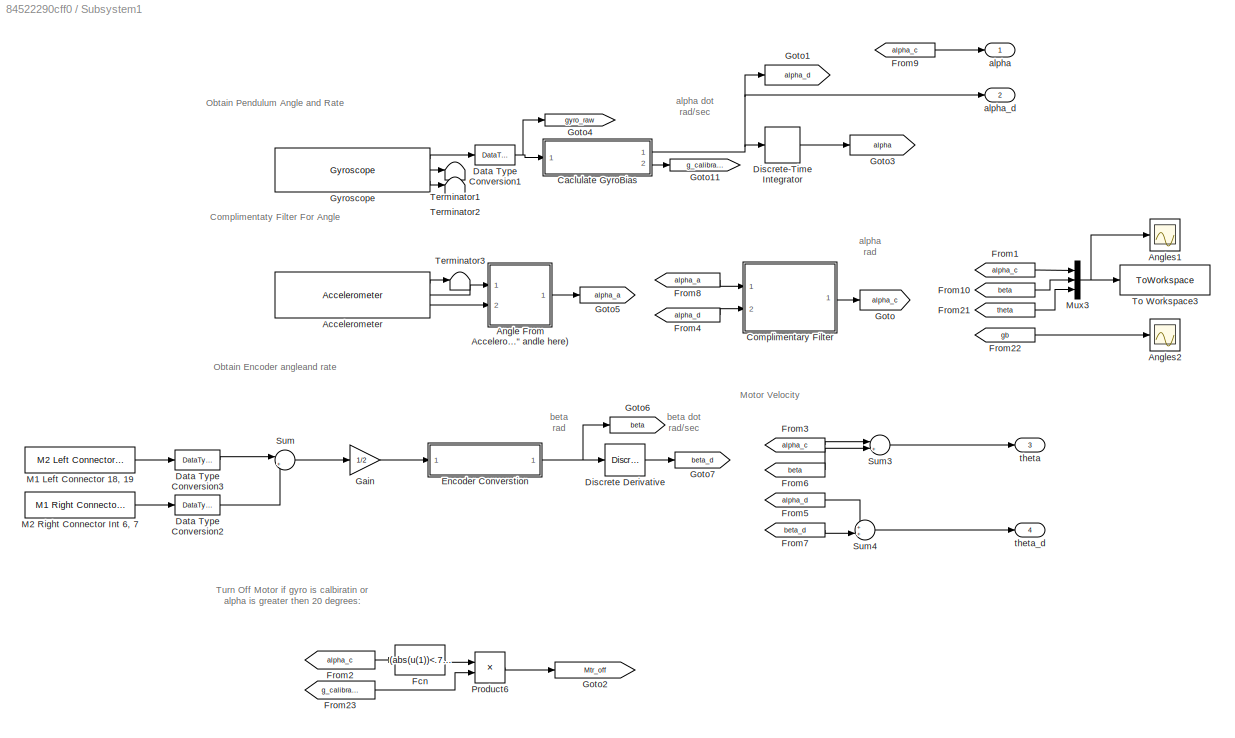
BLOCK [SubSystem] Subsystem1
  Permissions = ReadOnly
  Ports = [0, 4]
  RequestExecContextInheritance = off
  ShowPortLabels = SignalName
BLOCK [SubSystem] Subsystem1/ Complimentary Filter
  Ports = [2, 1]
  RequestExecContextInheritance = off
BLOCK [Delay] Subsystem1/ Complimentary Filter/Delay
  DelayLength = 1
  InputPortMap = u0
  NameLocation = top
  Ports = [1, 1]
  SampleTime = TS
BLOCK [Sum] Subsystem1/ Complimentary Filter/Sum1
  Inputs = |++
  Ports = [2, 1]
BLOCK [Sum] Subsystem1/ Complimentary Filter/Sum2
  Inputs = ++|
  Ports = [2, 1]
BLOCK [Inport] Subsystem1/ Complimentary Filter/alpha accel
BLOCK [Outport] Subsystem1/ Complimentary Filter/alpha combined
BLOCK [Gain] Subsystem1/ Complimentary Filter/convert to radians1
  Gain = .99
  OutDataTypeStr = single
BLOCK [Gain] Subsystem1/ Complimentary Filter/convert to radians2
  Gain = TS
  OutDataTypeStr = single
BLOCK [Gain] Subsystem1/ Complimentary Filter/convert to radians6
  Gain = .01
  OutDataTypeStr = single
BLOCK [Inport] Subsystem1/ Complimentary Filter/gyro rate
  Port = 2
BLOCK [Reference] Subsystem1/Accelerometer  REF=RASPlib/Accelerometer
  Ports = [0, 3]
  SourceBlock = RASPlib/Accelerometer
  SourceProductName = Rensselaer Arduino Support Package
  SourceType = soMPU6050Accel
BLOCK [SubSystem] Subsystem1/Angle From Accelerometer (adjust "zero" andle here)
  Ports = [2, 1]
  RequestExecContextInheritance = off
BLOCK [DataTypeConversion] Subsystem1/Angle From Accelerometer (adjust "zero" andle here)/Data Type Conversion
  OutDataTypeStr = single
  RndMeth = Floor
  SaturateOnIntegerOverflow = off
BLOCK [DataTypeConversion] Subsystem1/Angle From Accelerometer (adjust "zero" andle here)/Data Type Conversion1
  OutDataTypeStr = single
  RndMeth = Floor
  SaturateOnIntegerOverflow = off
BLOCK [From] Subsystem1/Angle From Accelerometer (adjust "zero" andle here)/From
  GotoTag = Angle_Adjust
  TagVisibility = global
BLOCK [Gain] Subsystem1/Angle From Accelerometer (adjust "zero" andle here)/Gain1
  Gain = -1
BLOCK [Gain] Subsystem1/Angle From Accelerometer (adjust "zero" andle here)/Gain2
  Gain = -1
BLOCK [Sum] Subsystem1/Angle From Accelerometer (adjust "zero" andle here)/Sum
  Inputs = |+-
  Ports = [2, 1]
BLOCK [Sum] Subsystem1/Angle From Accelerometer (adjust "zero" andle here)/Sum1
  Inputs = |+-
  Ports = [2, 1]
BLOCK [Sum] Subsystem1/Angle From Accelerometer (adjust "zero" andle here)/Sum2
  Inputs = ++|
  Ports = [2, 1]
BLOCK [Trigonometry] Subsystem1/Angle From Accelerometer (adjust "zero" andle here)/Trigonometric Function
  Operator = atan2
  Ports = [2, 1]
BLOCK [Constant] Subsystem1/Angle From Accelerometer (adjust "zero" andle here)/Y Bias
  Value = 101
BLOCK [Constant] Subsystem1/Angle From Accelerometer (adjust "zero" andle here)/Z Bias
  Value = 1430
BLOCK [Constant] Subsystem1/Angle From Accelerometer (adjust "zero" andle here)/Z Bias2
  Commented = on
  OutDataTypeStr = single
  Value = .1
BLOCK [Outport] Subsystem1/Angle From Accelerometer (adjust "zero" andle here)/angle rad
BLOCK [Inport] Subsystem1/Angle From Accelerometer (adjust "zero" andle here)/yacc
  NameLocation = top
BLOCK [Inport] Subsystem1/Angle From Accelerometer (adjust "zero" andle here)/zacc
  Port = 2
BLOCK [Scope] Subsystem1/Angles1
  Commented = on
  Floating = off
  NumInputPorts = 1
  Ports = [1]
  ScopeSpecificationString = Simulink.scopes.TimeScopeBlockCfg('CurrentConfiguration', extmgr.ConfigurationSet(extmgr.Configuration('Core','General UI',true),extmgr.Configuration('Core','Source UI',true),extmgr.Configuration('Sources','WiredSimulink',true,'DataLoggingSaveFormat','StructureWithTime','DataLoggingLimitDataPoints',true,'DataLoggingDecimation','1','DataLoggingDecimateData',true,'DataLoggingVariableName','ScopeData...<+1822ch>
BLOCK [Scope] Subsystem1/Angles2
  Commented = on
  Floating = off
  NumInputPorts = 1
  Ports = [1]
  ScopeSpecificationString = Simulink.scopes.TimeScopeBlockCfg('CurrentConfiguration', extmgr.ConfigurationSet(extmgr.Configuration('Core','General UI',true),extmgr.Configuration('Core','Source UI',true),extmgr.Configuration('Sources','WiredSimulink',true,'DataLoggingSaveFormat','StructureWithTime','DataLoggingLimitDataPoints',true,'DataLoggingDecimation','1','DataLoggingDecimateData',true,'DataLoggingVariableName','ScopeData...<+1826ch>
BLOCK [SubSystem] Subsystem1/Caclulate GyroBias
  Ports = [1, 2]
  RequestExecContextInheritance = off
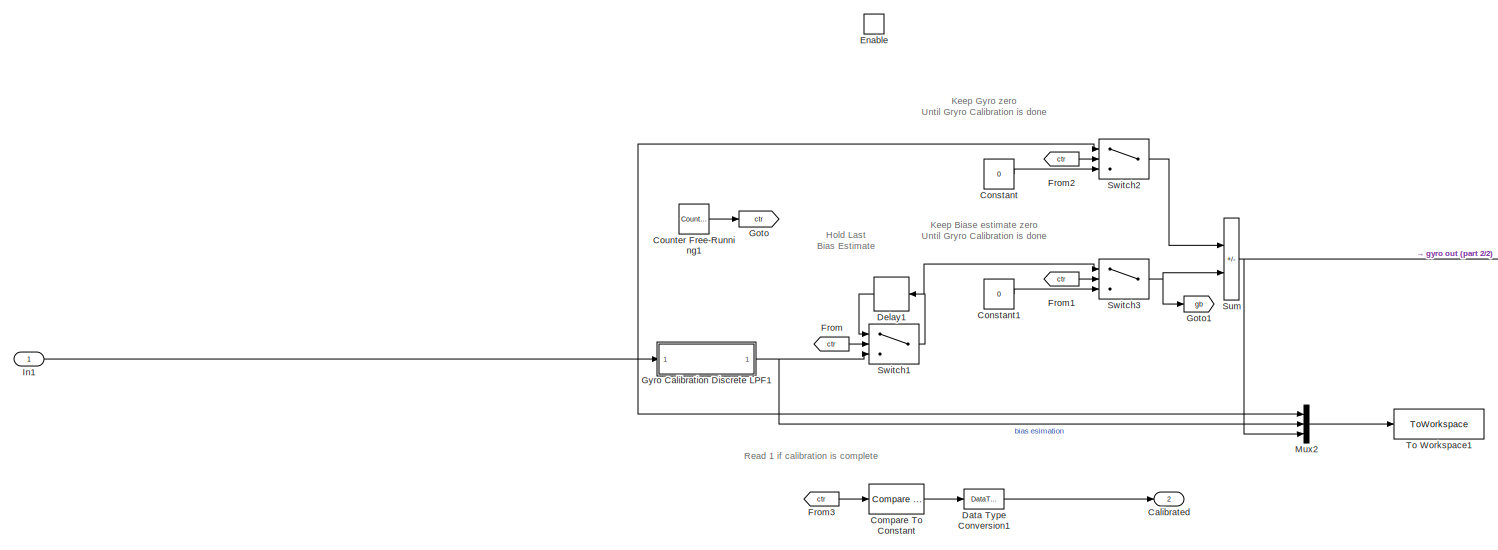
[diagram: Subsystem1/Caclulate GyroBias/Caclulate GyroBias - part 1/2, most of the canvas]
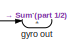
[diagram: Subsystem1/Caclulate GyroBias/Caclulate GyroBias - part 2/2, middle right region]
BLOCK [SubSystem] Subsystem1/Caclulate GyroBias/Caclulate GyroBias
  Ports = [1, 2, 1]
  RequestExecContextInheritance = off
BLOCK [Outport] Subsystem1/Caclulate GyroBias/Caclulate GyroBias/Calibrated
  Port = 2
BLOCK [Reference] Subsystem1/Caclulate GyroBias/Caclulate GyroBias/Compare To Constant  REF=simulink/Logic and Bit
Operations/Compare
To Constant
  Ports = [1, 1]
  SourceBlock = simulink/Logic and Bit\nOperations/Compare\nTo Constant
  SourceProductBaseCode = SL
  SourceType = Compare To Constant
BLOCK [Constant] Subsystem1/Caclulate GyroBias/Caclulate GyroBias/Constant
  OutDataTypeStr = single
  Value = 0
BLOCK [Constant] Subsystem1/Caclulate GyroBias/Caclulate GyroBias/Constant1
  OutDataTypeStr = single
  Value = 0
BLOCK [Reference] Subsystem1/Caclulate GyroBias/Caclulate GyroBias/Counter Free-Running1  REF=simulink/Sources/Counter
Free-Running
  Ports = [0, 1]
  SourceBlock = simulink/Sources/Counter\nFree-Running
  SourceProductBaseCode = SL
  SourceType = Counter Free-Running
BLOCK [DataTypeConversion] Subsystem1/Caclulate GyroBias/Caclulate GyroBias/Data Type Conversion1
  OutDataTypeStr = single
  RndMeth = Floor
  SaturateOnIntegerOverflow = off
BLOCK [Delay] Subsystem1/Caclulate GyroBias/Caclulate GyroBias/Delay1
  DelayLength = 1
  InputPortMap = u0
  NameLocation = top
  Ports = [1, 1]
BLOCK [EnablePort] Subsystem1/Caclulate GyroBias/Caclulate GyroBias/Enable
  Ports = []
BLOCK [From] Subsystem1/Caclulate GyroBias/Caclulate GyroBias/From
  GotoTag = ctr
BLOCK [From] Subsystem1/Caclulate GyroBias/Caclulate GyroBias/From1
  GotoTag = ctr
BLOCK [From] Subsystem1/Caclulate GyroBias/Caclulate GyroBias/From2
  GotoTag = ctr
BLOCK [From] Subsystem1/Caclulate GyroBias/Caclulate GyroBias/From3
  GotoTag = ctr
BLOCK [Goto] Subsystem1/Caclulate GyroBias/Caclulate GyroBias/Goto
  GotoTag = ctr
BLOCK [Goto] Subsystem1/Caclulate GyroBias/Caclulate GyroBias/Goto1
  GotoTag = gb
  TagVisibility = global
BLOCK [SubSystem] Subsystem1/Caclulate GyroBias/Caclulate GyroBias/Gyro Calibration Discrete LPF1
  Ports = [1, 1]
  RequestExecContextInheritance = off
BLOCK [DiscreteIntegrator] Subsystem1/Caclulate GyroBias/Caclulate GyroBias/Gyro Calibration Discrete LPF1/Discrete-Time Integrator
  ICPrevOutput = DiscIntNeverNeededParam
  ICPrevScaledInput = DiscIntNeverNeededParam
  InitialConditionSetting = Auto
  Ports = [1, 1]
  SampleTime = -1
BLOCK [Gain] Subsystem1/Caclulate GyroBias/Caclulate GyroBias/Gyro Calibration Discrete LPF1/Gain
  Gain = 1/.1
BLOCK [Inport] Subsystem1/Caclulate GyroBias/Caclulate GyroBias/Gyro Calibration Discrete LPF1/Gyro
BLOCK [Outport] Subsystem1/Caclulate GyroBias/Caclulate GyroBias/Gyro Calibration Discrete LPF1/Out1
BLOCK [Sum] Subsystem1/Caclulate GyroBias/Caclulate GyroBias/Gyro Calibration Discrete LPF1/Sum
  Inputs = |+-
  Ports = [2, 1]
BLOCK [Inport] Subsystem1/Caclulate GyroBias/Caclulate GyroBias/In1
BLOCK [Mux] Subsystem1/Caclulate GyroBias/Caclulate GyroBias/Mux2
  Commented = on
  DisplayOption = bar
  Inputs = 3
  Ports = [3, 1]
BLOCK [Sum] Subsystem1/Caclulate GyroBias/Caclulate GyroBias/Sum
  IconShape = rectangular
  Inputs = +-
  Ports = [2, 1]
BLOCK [Switch] Subsystem1/Caclulate GyroBias/Caclulate GyroBias/Switch1
  Criteria = u2 > Threshold
  InputSameDT = off
  SaturateOnIntegerOverflow = off
  Threshold = 85
BLOCK [Switch] Subsystem1/Caclulate GyroBias/Caclulate GyroBias/Switch2
  Criteria = u2 > Threshold
  InputSameDT = off
  SaturateOnIntegerOverflow = off
  Threshold = 85
BLOCK [Switch] Subsystem1/Caclulate GyroBias/Caclulate GyroBias/Switch3
  Criteria = u2 > Threshold
  InputSameDT = off
  SaturateOnIntegerOverflow = off
  Threshold = 85
BLOCK [ToWorkspace] Subsystem1/Caclulate GyroBias/Caclulate GyroBias/To Workspace1
  Commented = on
  FixptAsFi = on
  MaxDataPoints = inf
  Ports = [1]
  SampleTime = -1
  Save2DSignal = 2-D array (concatenate along first dimension)
  VariableName = simout
BLOCK [Outport] Subsystem1/Caclulate GyroBias/Caclulate GyroBias/gyro out
BLOCK [Constant] Subsystem1/Caclulate GyroBias/Constant
  Value = GBiasMask
BLOCK [Inport] Subsystem1/Caclulate GyroBias/Gyro_in
BLOCK [Outport] Subsystem1/Caclulate GyroBias/Gyro_out
BLOCK [Logic] Subsystem1/Caclulate GyroBias/Logical Operator
  AllPortsSameDT = off
  Operator = NOT
  OutDataTypeStr = boolean
  Ports = [1, 1]
BLOCK [Sum] Subsystem1/Caclulate GyroBias/Sum
  IconShape = rectangular
  Inputs = +-
  Ports = [2, 1]
BLOCK [Switch] Subsystem1/Caclulate GyroBias/Switch
  Criteria = u2 > Threshold
  InputSameDT = off
  SaturateOnIntegerOverflow = off
BLOCK [Outport] Subsystem1/Caclulate GyroBias/calibrated
  Port = 2
BLOCK [Gain] Subsystem1/Caclulate GyroBias/conver to radians//sed
  Gain = -GSm
  OutDataTypeStr = single
BLOCK [DataTypeConversion] Subsystem1/Data Type Conversion1
  OutDataTypeStr = single
  RndMeth = Floor
  SaturateOnIntegerOverflow = off
BLOCK [DataTypeConversion] Subsystem1/Data Type Conversion2
  OutDataTypeStr = single
  RndMeth = Floor
  SaturateOnIntegerOverflow = off
BLOCK [DataTypeConversion] Subsystem1/Data Type Conversion3
  OutDataTypeStr = single
  RndMeth = Floor
  SaturateOnIntegerOverflow = off
BLOCK [Reference] Subsystem1/Discrete Derivative  REF=simulink/Discrete/Discrete Derivative
  Ports = [1, 1]
  SourceBlock = simulink/Discrete/Discrete Derivative
  SourceProductBaseCode = SL
  SourceType = Discrete Derivative
BLOCK [DiscreteIntegrator] Subsystem1/Discrete-Time Integrator
  Commented = on
  ICPrevOutput = DiscIntNeverNeededParam
  ICPrevScaledInput = DiscIntNeverNeededParam
  Ports = [1, 1]
  SampleTime = TS
BLOCK [SubSystem] Subsystem1/Encoder Converstion
  Ports = [1, 1]
  RequestExecContextInheritance = off
BLOCK [Inport] Subsystem1/Encoder Converstion/Encoder_in
BLOCK [Outport] Subsystem1/Encoder Converstion/Encoder_out
BLOCK [Gain] Subsystem1/Encoder Converstion/convert to radians
  Gain = -ESm
  OutDataTypeStr = single
BLOCK [Fcn] Subsystem1/Fcn
  Expr = (abs(u(1))<.75)
BLOCK [From] Subsystem1/From1
  Commented = on
  GotoTag = alpha_c
BLOCK [From] Subsystem1/From10
  Commented = on
  GotoTag = beta
BLOCK [From] Subsystem1/From2
  GotoTag = alpha_c
BLOCK [From] Subsystem1/From21
  Commented = on
  GotoTag = theta
  TagVisibility = global
BLOCK [From] Subsystem1/From22
  Commented = on
  GotoTag = gb
  TagVisibility = global
BLOCK [From] Subsystem1/From23
  GotoTag = g_calibrated
BLOCK [From] Subsystem1/From3
  GotoTag = alpha_c
BLOCK [From] Subsystem1/From4
  GotoTag = alpha_d
BLOCK [From] Subsystem1/From5
  GotoTag = alpha_d
BLOCK [From] Subsystem1/From6
  GotoTag = beta
BLOCK [From] Subsystem1/From7
  GotoTag = beta_d
BLOCK [From] Subsystem1/From8
  GotoTag = alpha_a
BLOCK [From] Subsystem1/From9
  GotoTag = alpha_c
BLOCK [Gain] Subsystem1/Gain
  Gain = 1/2
BLOCK [Goto] Subsystem1/Goto
  GotoTag = alpha_c
BLOCK [Goto] Subsystem1/Goto1
  GotoTag = alpha_d
BLOCK [Goto] Subsystem1/Goto11
  GotoTag = g_calibrated
BLOCK [Goto] Subsystem1/Goto2
  GotoTag = Mtr_off
  TagVisibility = global
BLOCK [Goto] Subsystem1/Goto3
  Commented = on
  GotoTag = alpha
BLOCK [Goto] Subsystem1/Goto4
  Commented = on
  GotoTag = gyro_raw
  TagVisibility = global
BLOCK [Goto] Subsystem1/Goto5
  GotoTag = alpha_a
BLOCK [Goto] Subsystem1/Goto6
  GotoTag = beta
BLOCK [Goto] Subsystem1/Goto7
  GotoTag = beta_d
BLOCK [Reference] Subsystem1/Gyroscope  REF=RASPlib/Gyroscope
  Ports = [0, 3]
  SourceBlock = RASPlib/Gyroscope
  SourceProductName = Rensselaer Arduino Support Package
  SourceType = soMPU6050Gyro
BLOCK [Reference] Subsystem1/M1 Left Connector 18, 19  REF=MinSegLibrary_MinSegMega/M2 Left Connector 18, 19
  Ports = [0, 1]
  SourceBlock = MinSegLibrary_MinSegMega/M2 Left Connector 18, 19
  SourceProductName = Rensselaer Arduino Support Package
  SourceType = Encoder_arduino
BLOCK [Reference] Subsystem1/M2 Right Connector Int 6, 7  REF=MinSegLibrary_MinSegMega/M1 Right Connector Int 6, 7
  Ports = [0, 1]
  SourceBlock = MinSegLibrary_MinSegMega/M1 Right Connector Int 6, 7
  SourceProductName = Rensselaer Arduino Support Package
  SourceType = Encoder_arduino
BLOCK [Mux] Subsystem1/Mux3
  Commented = on
  DisplayOption = bar
  Inputs = 3
  Ports = [3, 1]
BLOCK [Product] Subsystem1/Product6
  Ports = [2, 1]
BLOCK [Sum] Subsystem1/Sum
  Inputs = |++
  Ports = [2, 1]
BLOCK [Sum] Subsystem1/Sum3
  Inputs = |++
  Ports = [2, 1]
BLOCK [Sum] Subsystem1/Sum4
  Inputs = ++|
  Ports = [2, 1]
BLOCK [Terminator] Subsystem1/Terminator1
BLOCK [Terminator] Subsystem1/Terminator2
BLOCK [Terminator] Subsystem1/Terminator3
BLOCK [ToWorkspace] Subsystem1/To Workspace3
  Commented = on
  FixptAsFi = on
  MaxDataPoints = inf
  Ports = [1]
  SampleTime = -1
  Save2DSignal = 2-D array (concatenate along first dimension)
  VariableName = x
BLOCK [Outport] Subsystem1/alpha
BLOCK [Outport] Subsystem1/alpha_d
  Port = 2
BLOCK [Outport] Subsystem1/theta
  Port = 3
BLOCK [Outport] Subsystem1/theta_d
  Port = 4
BLOCK [Sum] Sum1
  IconShape = rectangular
  Inputs = ----
  Ports = [4, 1]
ANNOTATION (root): Adjust the zero angle of the system
ANNOTATION (root): Estimate Pendulum Angle And Wheel Angle
ANNOTATION (root): Full Sate Feedback Controller
ANNOTATION (root): Obtain Gain Adjustment From Potentiometer
ANNOTATION (root): Notes: If Serial 0 (USB) is also used for BT, and the BT is plugged in then the code will not be able to download through USB (Serial 0) If Connect Tune and Plot is used and there is no BT plugged in it could read random data from those unconnected data lines and the code won't work correctly
ANNOTATION (root): Data to Plot (send to computer)
ANNOTATION (root): Data to Recieve (data from computer)
ANNOTATION (root): Manual Gains:
ANNOTATION (root): Output to DC Motors
ANNOTATION (root): Used to adjust overall gain from 0.8 to 1.2
ANNOTATION Plot and Tune Serial0 (USB) or Serial1//Serial2//Serial3 Double Click to Use (2020b and later)/Send//Recieve to Serial0//Serial1//Serial2//Serial3: 1) Add Subsystem or Model blocks as valid variant choices. 2) You cannot connect blocks at this level. At simulation, connectivity is automatically determined, based on the active variant and port name matching.
ANNOTATION Subsystem: + L
ANNOTATION Subsystem: Change this LR sign if it needs to to reverse left/right
ANNOTATION Subsystem: integral gain on theta to prevent wandering away only, if manually controlled not useful
ANNOTATION Subsystem: sum
ANNOTATION Subsystem1: Complimentaty Filter For Angle
ANNOTATION Subsystem1: Motor Velocity
ANNOTATION Subsystem1: Obtain Encoder angleand rate
ANNOTATION Subsystem1: Obtain Pendulum Angle and Rate
ANNOTATION Subsystem1: Turn Off Motor if gyro is calbiratin or alpha is greater then 20 degrees:
ANNOTATION Subsystem1: alpha rad
ANNOTATION Subsystem1: alpha dot rad/sec
ANNOTATION Subsystem1: beta rad
ANNOTATION Subsystem1: beta dot rad/sec
ANNOTATION Subsystem1/Caclulate GyroBias: If mask GBiasMask = 0 perform autocalibration
ANNOTATION Subsystem1/Caclulate GyroBias: If mask GBiasMask = 1 Use value provided
ANNOTATION Subsystem1/Caclulate GyroBias/Caclulate GyroBias: Hold Last Bias Estimate
ANNOTATION Subsystem1/Caclulate GyroBias/Caclulate GyroBias: Keep Biase estimate zero Until Gryro Calibration is done
ANNOTATION Subsystem1/Caclulate GyroBias/Caclulate GyroBias: Keep Gyro zero Until Gryro Calibration is done
ANNOTATION Subsystem1/Caclulate GyroBias/Caclulate GyroBias: Read 1 if calibration is complete
LINE Analog Input:1 -> Data Type Conversion4:1
LINE Constant1:1 -> Goto2:1
LINE Constant:1 -> Demux2:1
LINE Data Type Conversion4:1 -> Gain gadjust:1
LINE Demux2:1 -> Goto12:1
LINE Demux2:2 -> Goto13:1
LINE Demux2:3 -> Goto14:1
LINE Demux2:4 -> Goto20:1
LINE Demux4:1 -> Goto10:1
LINE Demux4:2 -> Goto11:1
LINE Demux4:3 -> Goto15:1
LINE Demux4:4 -> Goto21:1
LINE Demux4:5 -> Goto22:1
LINE Demux4:6 -> Goto23:1
LINE From17:1 -> Product3:1
LINE From18:1 -> Product4:1
LINE From19:1 -> Product2:1
LINE From20:1 -> Product5:1
LINE From4:1 -> Mux3:1
LINE From6:1 -> Mux3:2
LINE Gain gadjust:1 -> Product:2
LINE Mux3:1 -> Plot and Tune Serial0 (USB) or Serial1//Serial2//Serial3 Double Click to Use (2020b and later):1
LINE Plot and Tune Serial0 (USB) or Serial1//Serial2//Serial3 Double Click to Use (2020b and later)/In1:1 -> Plot and Tune Serial0 (USB) or Serial1//Serial2//Serial3 Double Click to Use (2020b and later)/Send//Recieve to Serial0//Serial1//Serial2//Serial3:1
LINE Plot and Tune Serial0 (USB) or Serial1//Serial2//Serial3 Double Click to Use (2020b and later)/MATLAB System:1 -> Plot and Tune Serial0 (USB) or Serial1//Serial2//Serial3 Double Click to Use (2020b and later)/Terminator:1
LINE Plot and Tune Serial0 (USB) or Serial1//Serial2//Serial3 Double Click to Use (2020b and later)/Send//Recieve to Serial0//Serial1//Serial2//Serial3/Serial 0 Send//Recieve/Constant:1 -> Plot and Tune Serial0 (USB) or Serial1//Serial2//Serial3 Double Click to Use (2020b and later)/Send//Recieve to Serial0//Serial1//Serial2//Serial3/Serial 0 Send//Recieve/Send Data To Computer:enable
LINE Plot and Tune Serial0 (USB) or Serial1//Serial2//Serial3 Double Click to Use (2020b and later)/Send//Recieve to Serial0//Serial1//Serial2//Serial3/Serial 0 Send//Recieve/Data Type Conversion4:1 -> Plot and Tune Serial0 (USB) or Serial1//Serial2//Serial3 Double Click to Use (2020b and later)/Send//Recieve to Serial0//Serial1//Serial2//Serial3/Serial 0 Send//Recieve/Out1:1
LINE Plot and Tune Serial0 (USB) or Serial1//Serial2//Serial3 Double Click to Use (2020b and later)/Send//Recieve to Serial0//Serial1//Serial2//Serial3/Serial 0 Send//Recieve/In1:1 -> Plot and Tune Serial0 (USB) or Serial1//Serial2//Serial3 Double Click to Use (2020b and later)/Send//Recieve to Serial0//Serial1//Serial2//Serial3/Serial 0 Send//Recieve/Send Data To Computer:1
LINE Plot and Tune Serial0 (USB) or Serial1//Serial2//Serial3 Double Click to Use (2020b and later)/Send//Recieve to Serial0//Serial1//Serial2//Serial3/Serial 0 Send//Recieve/Send Data To Computer/Byte Pack:1 -> Plot and Tune Serial0 (USB) or Serial1//Serial2//Serial3 Double Click to Use (2020b and later)/Send//Recieve to Serial0//Serial1//Serial2//Serial3/Serial 0 Send//Recieve/Send Data To Computer/Serial Transmit:1
LINE Plot and Tune Serial0 (USB) or Serial1//Serial2//Serial3 Double Click to Use (2020b and later)/Send//Recieve to Serial0//Serial1//Serial2//Serial3/Serial 0 Send//Recieve/Send Data To Computer/Data Type Conversion1:1 -> Plot and Tune Serial0 (USB) or Serial1//Serial2//Serial3 Double Click to Use (2020b and later)/Send//Recieve to Serial0//Serial1//Serial2//Serial3/Serial 0 Send//Recieve/Send Data To Computer/Byte Pack:1
LINE Plot and Tune Serial0 (USB) or Serial1//Serial2//Serial3 Double Click to Use (2020b and later)/Send//Recieve to Serial0//Serial1//Serial2//Serial3/Serial 0 Send//Recieve/Send Data To Computer/In1:1 -> Plot and Tune Serial0 (USB) or Serial1//Serial2//Serial3 Double Click to Use (2020b and later)/Send//Recieve to Serial0//Serial1//Serial2//Serial3/Serial 0 Send//Recieve/Send Data To Computer/Data Type Conversion1:1
LINE Plot and Tune Serial0 (USB) or Serial1//Serial2//Serial3 Double Click to Use (2020b and later)/Send//Recieve to Serial0//Serial1//Serial2//Serial3/Serial 0 Send//Recieve/Serial Receive:1 -> Plot and Tune Serial0 (USB) or Serial1//Serial2//Serial3 Double Click to Use (2020b and later)/Send//Recieve to Serial0//Serial1//Serial2//Serial3/Serial 0 Send//Recieve/Update  Variables On Status Change:1
LINE Plot and Tune Serial0 (USB) or Serial1//Serial2//Serial3 Double Click to Use (2020b and later)/Send//Recieve to Serial0//Serial1//Serial2//Serial3/Serial 0 Send//Recieve/Serial Receive:2 -> Plot and Tune Serial0 (USB) or Serial1//Serial2//Serial3 Double Click to Use (2020b and later)/Send//Recieve to Serial0//Serial1//Serial2//Serial3/Serial 0 Send//Recieve/Update  Variables On Status Change:2
LINE Plot and Tune Serial0 (USB) or Serial1//Serial2//Serial3 Double Click to Use (2020b and later)/Send//Recieve to Serial0//Serial1//Serial2//Serial3/Serial 0 Send//Recieve/Update  Variables On Status Change/Delay:1 -> Plot and Tune Serial0 (USB) or Serial1//Serial2//Serial3 Double Click to Use (2020b and later)/Send//Recieve to Serial0//Serial1//Serial2//Serial3/Serial 0 Send//Recieve/Update  Variables On Status Change/MATLAB Function1:2
NET Plot and Tune Serial0 (USB) or Serial1//Serial2//Serial3 Double Click to Use (2020b and later)/Send//Recieve to Serial0//Serial1//Serial2//Serial3/Serial 0 Send//Recieve/Update  Variables On Status Change/MATLAB Function1:1 -> Plot and Tune Serial0 (USB) or Serial1//Serial2//Serial3 Double Click to Use (2020b and later)/Send//Recieve to Serial0//Serial1//Serial2//Serial3/Serial 0 Send//Recieve/Update  Variables On Status Change/Delay:1, Plot and Tune Serial0 (USB) or Serial1//Serial2//Serial3 Double Click to Use (2020b and later)/Send//Recieve to Serial0//Serial1//Serial2//Serial3/Serial 0 Send//Recieve/Update  Variables On Status Change/y:1
LINE Plot and Tune Serial0 (USB) or Serial1//Serial2//Serial3 Double Click to Use (2020b and later)/Send//Recieve to Serial0//Serial1//Serial2//Serial3/Serial 0 Send//Recieve/Update  Variables On Status Change/data:1 -> Plot and Tune Serial0 (USB) or Serial1//Serial2//Serial3 Double Click to Use (2020b and later)/Send//Recieve to Serial0//Serial1//Serial2//Serial3/Serial 0 Send//Recieve/Update  Variables On Status Change/MATLAB Function1:1
LINE Plot and Tune Serial0 (USB) or Serial1//Serial2//Serial3 Double Click to Use (2020b and later)/Send//Recieve to Serial0//Serial1//Serial2//Serial3/Serial 0 Send//Recieve/Update  Variables On Status Change/status:1 -> Plot and Tune Serial0 (USB) or Serial1//Serial2//Serial3 Double Click to Use (2020b and later)/Send//Recieve to Serial0//Serial1//Serial2//Serial3/Serial 0 Send//Recieve/Update  Variables On Status Change/MATLAB Function1:3
LINE Plot and Tune Serial0 (USB) or Serial1//Serial2//Serial3 Double Click to Use (2020b and later)/Send//Recieve to Serial0//Serial1//Serial2//Serial3/Serial 0 Send//Recieve/Update  Variables On Status Change:1 -> Plot and Tune Serial0 (USB) or Serial1//Serial2//Serial3 Double Click to Use (2020b and later)/Send//Recieve to Serial0//Serial1//Serial2//Serial3/Serial 0 Send//Recieve/Data Type Conversion4:1
LINE Plot and Tune Serial0 (USB) or Serial1//Serial2//Serial3 Double Click to Use (2020b and later)/Send//Recieve to Serial0//Serial1//Serial2//Serial3/Serial 1 Send//Recieve/Constant:1 -> Plot and Tune Serial0 (USB) or Serial1//Serial2//Serial3 Double Click to Use (2020b and later)/Send//Recieve to Serial0//Serial1//Serial2//Serial3/Serial 1 Send//Recieve/Send Data To Computer:enable
LINE Plot and Tune Serial0 (USB) or Serial1//Serial2//Serial3 Double Click to Use (2020b and later)/Send//Recieve to Serial0//Serial1//Serial2//Serial3/Serial 1 Send//Recieve/Data Type Conversion4:1 -> Plot and Tune Serial0 (USB) or Serial1//Serial2//Serial3 Double Click to Use (2020b and later)/Send//Recieve to Serial0//Serial1//Serial2//Serial3/Serial 1 Send//Recieve/Out1:1
LINE Plot and Tune Serial0 (USB) or Serial1//Serial2//Serial3 Double Click to Use (2020b and later)/Send//Recieve to Serial0//Serial1//Serial2//Serial3/Serial 1 Send//Recieve/In1:1 -> Plot and Tune Serial0 (USB) or Serial1//Serial2//Serial3 Double Click to Use (2020b and later)/Send//Recieve to Serial0//Serial1//Serial2//Serial3/Serial 1 Send//Recieve/Send Data To Computer:1
LINE Plot and Tune Serial0 (USB) or Serial1//Serial2//Serial3 Double Click to Use (2020b and later)/Send//Recieve to Serial0//Serial1//Serial2//Serial3/Serial 1 Send//Recieve/Send Data To Computer/Byte Pack:1 -> Plot and Tune Serial0 (USB) or Serial1//Serial2//Serial3 Double Click to Use (2020b and later)/Send//Recieve to Serial0//Serial1//Serial2//Serial3/Serial 1 Send//Recieve/Send Data To Computer/Serial Transmit:1
LINE Plot and Tune Serial0 (USB) or Serial1//Serial2//Serial3 Double Click to Use (2020b and later)/Send//Recieve to Serial0//Serial1//Serial2//Serial3/Serial 1 Send//Recieve/Send Data To Computer/Data Type Conversion1:1 -> Plot and Tune Serial0 (USB) or Serial1//Serial2//Serial3 Double Click to Use (2020b and later)/Send//Recieve to Serial0//Serial1//Serial2//Serial3/Serial 1 Send//Recieve/Send Data To Computer/Byte Pack:1
LINE Plot and Tune Serial0 (USB) or Serial1//Serial2//Serial3 Double Click to Use (2020b and later)/Send//Recieve to Serial0//Serial1//Serial2//Serial3/Serial 1 Send//Recieve/Send Data To Computer/In1:1 -> Plot and Tune Serial0 (USB) or Serial1//Serial2//Serial3 Double Click to Use (2020b and later)/Send//Recieve to Serial0//Serial1//Serial2//Serial3/Serial 1 Send//Recieve/Send Data To Computer/Data Type Conversion1:1
LINE Plot and Tune Serial0 (USB) or Serial1//Serial2//Serial3 Double Click to Use (2020b and later)/Send//Recieve to Serial0//Serial1//Serial2//Serial3/Serial 1 Send//Recieve/Serial Receive:1 -> Plot and Tune Serial0 (USB) or Serial1//Serial2//Serial3 Double Click to Use (2020b and later)/Send//Recieve to Serial0//Serial1//Serial2//Serial3/Serial 1 Send//Recieve/Update  Variables On Status Change:1
LINE Plot and Tune Serial0 (USB) or Serial1//Serial2//Serial3 Double Click to Use (2020b and later)/Send//Recieve to Serial0//Serial1//Serial2//Serial3/Serial 1 Send//Recieve/Serial Receive:2 -> Plot and Tune Serial0 (USB) or Serial1//Serial2//Serial3 Double Click to Use (2020b and later)/Send//Recieve to Serial0//Serial1//Serial2//Serial3/Serial 1 Send//Recieve/Update  Variables On Status Change:2
LINE Plot and Tune Serial0 (USB) or Serial1//Serial2//Serial3 Double Click to Use (2020b and later)/Send//Recieve to Serial0//Serial1//Serial2//Serial3/Serial 1 Send//Recieve/Update  Variables On Status Change/Delay:1 -> Plot and Tune Serial0 (USB) or Serial1//Serial2//Serial3 Double Click to Use (2020b and later)/Send//Recieve to Serial0//Serial1//Serial2//Serial3/Serial 1 Send//Recieve/Update  Variables On Status Change/MATLAB Function1:2
NET Plot and Tune Serial0 (USB) or Serial1//Serial2//Serial3 Double Click to Use (2020b and later)/Send//Recieve to Serial0//Serial1//Serial2//Serial3/Serial 1 Send//Recieve/Update  Variables On Status Change/MATLAB Function1:1 -> Plot and Tune Serial0 (USB) or Serial1//Serial2//Serial3 Double Click to Use (2020b and later)/Send//Recieve to Serial0//Serial1//Serial2//Serial3/Serial 1 Send//Recieve/Update  Variables On Status Change/Delay:1, Plot and Tune Serial0 (USB) or Serial1//Serial2//Serial3 Double Click to Use (2020b and later)/Send//Recieve to Serial0//Serial1//Serial2//Serial3/Serial 1 Send//Recieve/Update  Variables On Status Change/y:1
LINE Plot and Tune Serial0 (USB) or Serial1//Serial2//Serial3 Double Click to Use (2020b and later)/Send//Recieve to Serial0//Serial1//Serial2//Serial3/Serial 1 Send//Recieve/Update  Variables On Status Change/data:1 -> Plot and Tune Serial0 (USB) or Serial1//Serial2//Serial3 Double Click to Use (2020b and later)/Send//Recieve to Serial0//Serial1//Serial2//Serial3/Serial 1 Send//Recieve/Update  Variables On Status Change/MATLAB Function1:1
LINE Plot and Tune Serial0 (USB) or Serial1//Serial2//Serial3 Double Click to Use (2020b and later)/Send//Recieve to Serial0//Serial1//Serial2//Serial3/Serial 1 Send//Recieve/Update  Variables On Status Change/status:1 -> Plot and Tune Serial0 (USB) or Serial1//Serial2//Serial3 Double Click to Use (2020b and later)/Send//Recieve to Serial0//Serial1//Serial2//Serial3/Serial 1 Send//Recieve/Update  Variables On Status Change/MATLAB Function1:3
LINE Plot and Tune Serial0 (USB) or Serial1//Serial2//Serial3 Double Click to Use (2020b and later)/Send//Recieve to Serial0//Serial1//Serial2//Serial3/Serial 1 Send//Recieve/Update  Variables On Status Change:1 -> Plot and Tune Serial0 (USB) or Serial1//Serial2//Serial3 Double Click to Use (2020b and later)/Send//Recieve to Serial0//Serial1//Serial2//Serial3/Serial 1 Send//Recieve/Data Type Conversion4:1
LINE Plot and Tune Serial0 (USB) or Serial1//Serial2//Serial3 Double Click to Use (2020b and later)/Send//Recieve to Serial0//Serial1//Serial2//Serial3/Serial 2 Send//Recieve/Constant:1 -> Plot and Tune Serial0 (USB) or Serial1//Serial2//Serial3 Double Click to Use (2020b and later)/Send//Recieve to Serial0//Serial1//Serial2//Serial3/Serial 2 Send//Recieve/Send Data To Computer:enable
LINE Plot and Tune Serial0 (USB) or Serial1//Serial2//Serial3 Double Click to Use (2020b and later)/Send//Recieve to Serial0//Serial1//Serial2//Serial3/Serial 2 Send//Recieve/Data Type Conversion4:1 -> Plot and Tune Serial0 (USB) or Serial1//Serial2//Serial3 Double Click to Use (2020b and later)/Send//Recieve to Serial0//Serial1//Serial2//Serial3/Serial 2 Send//Recieve/Out1:1
LINE Plot and Tune Serial0 (USB) or Serial1//Serial2//Serial3 Double Click to Use (2020b and later)/Send//Recieve to Serial0//Serial1//Serial2//Serial3/Serial 2 Send//Recieve/In1:1 -> Plot and Tune Serial0 (USB) or Serial1//Serial2//Serial3 Double Click to Use (2020b and later)/Send//Recieve to Serial0//Serial1//Serial2//Serial3/Serial 2 Send//Recieve/Send Data To Computer:1
LINE Plot and Tune Serial0 (USB) or Serial1//Serial2//Serial3 Double Click to Use (2020b and later)/Send//Recieve to Serial0//Serial1//Serial2//Serial3/Serial 2 Send//Recieve/Send Data To Computer/Byte Pack:1 -> Plot and Tune Serial0 (USB) or Serial1//Serial2//Serial3 Double Click to Use (2020b and later)/Send//Recieve to Serial0//Serial1//Serial2//Serial3/Serial 2 Send//Recieve/Send Data To Computer/Serial Transmit:1
LINE Plot and Tune Serial0 (USB) or Serial1//Serial2//Serial3 Double Click to Use (2020b and later)/Send//Recieve to Serial0//Serial1//Serial2//Serial3/Serial 2 Send//Recieve/Send Data To Computer/Data Type Conversion1:1 -> Plot and Tune Serial0 (USB) or Serial1//Serial2//Serial3 Double Click to Use (2020b and later)/Send//Recieve to Serial0//Serial1//Serial2//Serial3/Serial 2 Send//Recieve/Send Data To Computer/Byte Pack:1
LINE Plot and Tune Serial0 (USB) or Serial1//Serial2//Serial3 Double Click to Use (2020b and later)/Send//Recieve to Serial0//Serial1//Serial2//Serial3/Serial 2 Send//Recieve/Send Data To Computer/In1:1 -> Plot and Tune Serial0 (USB) or Serial1//Serial2//Serial3 Double Click to Use (2020b and later)/Send//Recieve to Serial0//Serial1//Serial2//Serial3/Serial 2 Send//Recieve/Send Data To Computer/Data Type Conversion1:1
LINE Plot and Tune Serial0 (USB) or Serial1//Serial2//Serial3 Double Click to Use (2020b and later)/Send//Recieve to Serial0//Serial1//Serial2//Serial3/Serial 2 Send//Recieve/Serial Receive:1 -> Plot and Tune Serial0 (USB) or Serial1//Serial2//Serial3 Double Click to Use (2020b and later)/Send//Recieve to Serial0//Serial1//Serial2//Serial3/Serial 2 Send//Recieve/Update  Variables On Status Change:1
LINE Plot and Tune Serial0 (USB) or Serial1//Serial2//Serial3 Double Click to Use (2020b and later)/Send//Recieve to Serial0//Serial1//Serial2//Serial3/Serial 2 Send//Recieve/Serial Receive:2 -> Plot and Tune Serial0 (USB) or Serial1//Serial2//Serial3 Double Click to Use (2020b and later)/Send//Recieve to Serial0//Serial1//Serial2//Serial3/Serial 2 Send//Recieve/Update  Variables On Status Change:2
LINE Plot and Tune Serial0 (USB) or Serial1//Serial2//Serial3 Double Click to Use (2020b and later)/Send//Recieve to Serial0//Serial1//Serial2//Serial3/Serial 2 Send//Recieve/Update  Variables On Status Change/Delay:1 -> Plot and Tune Serial0 (USB) or Serial1//Serial2//Serial3 Double Click to Use (2020b and later)/Send//Recieve to Serial0//Serial1//Serial2//Serial3/Serial 2 Send//Recieve/Update  Variables On Status Change/MATLAB Function1:2
NET Plot and Tune Serial0 (USB) or Serial1//Serial2//Serial3 Double Click to Use (2020b and later)/Send//Recieve to Serial0//Serial1//Serial2//Serial3/Serial 2 Send//Recieve/Update  Variables On Status Change/MATLAB Function1:1 -> Plot and Tune Serial0 (USB) or Serial1//Serial2//Serial3 Double Click to Use (2020b and later)/Send//Recieve to Serial0//Serial1//Serial2//Serial3/Serial 2 Send//Recieve/Update  Variables On Status Change/Delay:1, Plot and Tune Serial0 (USB) or Serial1//Serial2//Serial3 Double Click to Use (2020b and later)/Send//Recieve to Serial0//Serial1//Serial2//Serial3/Serial 2 Send//Recieve/Update  Variables On Status Change/y:1
LINE Plot and Tune Serial0 (USB) or Serial1//Serial2//Serial3 Double Click to Use (2020b and later)/Send//Recieve to Serial0//Serial1//Serial2//Serial3/Serial 2 Send//Recieve/Update  Variables On Status Change/data:1 -> Plot and Tune Serial0 (USB) or Serial1//Serial2//Serial3 Double Click to Use (2020b and later)/Send//Recieve to Serial0//Serial1//Serial2//Serial3/Serial 2 Send//Recieve/Update  Variables On Status Change/MATLAB Function1:1
LINE Plot and Tune Serial0 (USB) or Serial1//Serial2//Serial3 Double Click to Use (2020b and later)/Send//Recieve to Serial0//Serial1//Serial2//Serial3/Serial 2 Send//Recieve/Update  Variables On Status Change/status:1 -> Plot and Tune Serial0 (USB) or Serial1//Serial2//Serial3 Double Click to Use (2020b and later)/Send//Recieve to Serial0//Serial1//Serial2//Serial3/Serial 2 Send//Recieve/Update  Variables On Status Change/MATLAB Function1:3
LINE Plot and Tune Serial0 (USB) or Serial1//Serial2//Serial3 Double Click to Use (2020b and later)/Send//Recieve to Serial0//Serial1//Serial2//Serial3/Serial 2 Send//Recieve/Update  Variables On Status Change:1 -> Plot and Tune Serial0 (USB) or Serial1//Serial2//Serial3 Double Click to Use (2020b and later)/Send//Recieve to Serial0//Serial1//Serial2//Serial3/Serial 2 Send//Recieve/Data Type Conversion4:1
LINE Plot and Tune Serial0 (USB) or Serial1//Serial2//Serial3 Double Click to Use (2020b and later)/Send//Recieve to Serial0//Serial1//Serial2//Serial3/Serial 3 Send//Recieve/Constant:1 -> Plot and Tune Serial0 (USB) or Serial1//Serial2//Serial3 Double Click to Use (2020b and later)/Send//Recieve to Serial0//Serial1//Serial2//Serial3/Serial 3 Send//Recieve/Send Data To Computer:enable
LINE Plot and Tune Serial0 (USB) or Serial1//Serial2//Serial3 Double Click to Use (2020b and later)/Send//Recieve to Serial0//Serial1//Serial2//Serial3/Serial 3 Send//Recieve/Data Type Conversion4:1 -> Plot and Tune Serial0 (USB) or Serial1//Serial2//Serial3 Double Click to Use (2020b and later)/Send//Recieve to Serial0//Serial1//Serial2//Serial3/Serial 3 Send//Recieve/Out1:1
LINE Plot and Tune Serial0 (USB) or Serial1//Serial2//Serial3 Double Click to Use (2020b and later)/Send//Recieve to Serial0//Serial1//Serial2//Serial3/Serial 3 Send//Recieve/In1:1 -> Plot and Tune Serial0 (USB) or Serial1//Serial2//Serial3 Double Click to Use (2020b and later)/Send//Recieve to Serial0//Serial1//Serial2//Serial3/Serial 3 Send//Recieve/Send Data To Computer:1
LINE Plot and Tune Serial0 (USB) or Serial1//Serial2//Serial3 Double Click to Use (2020b and later)/Send//Recieve to Serial0//Serial1//Serial2//Serial3/Serial 3 Send//Recieve/Send Data To Computer/Byte Pack:1 -> Plot and Tune Serial0 (USB) or Serial1//Serial2//Serial3 Double Click to Use (2020b and later)/Send//Recieve to Serial0//Serial1//Serial2//Serial3/Serial 3 Send//Recieve/Send Data To Computer/Serial Transmit:1
LINE Plot and Tune Serial0 (USB) or Serial1//Serial2//Serial3 Double Click to Use (2020b and later)/Send//Recieve to Serial0//Serial1//Serial2//Serial3/Serial 3 Send//Recieve/Send Data To Computer/Data Type Conversion1:1 -> Plot and Tune Serial0 (USB) or Serial1//Serial2//Serial3 Double Click to Use (2020b and later)/Send//Recieve to Serial0//Serial1//Serial2//Serial3/Serial 3 Send//Recieve/Send Data To Computer/Byte Pack:1
LINE Plot and Tune Serial0 (USB) or Serial1//Serial2//Serial3 Double Click to Use (2020b and later)/Send//Recieve to Serial0//Serial1//Serial2//Serial3/Serial 3 Send//Recieve/Send Data To Computer/In1:1 -> Plot and Tune Serial0 (USB) or Serial1//Serial2//Serial3 Double Click to Use (2020b and later)/Send//Recieve to Serial0//Serial1//Serial2//Serial3/Serial 3 Send//Recieve/Send Data To Computer/Data Type Conversion1:1
LINE Plot and Tune Serial0 (USB) or Serial1//Serial2//Serial3 Double Click to Use (2020b and later)/Send//Recieve to Serial0//Serial1//Serial2//Serial3/Serial 3 Send//Recieve/Serial Receive:1 -> Plot and Tune Serial0 (USB) or Serial1//Serial2//Serial3 Double Click to Use (2020b and later)/Send//Recieve to Serial0//Serial1//Serial2//Serial3/Serial 3 Send//Recieve/Update  Variables On Status Change:1
LINE Plot and Tune Serial0 (USB) or Serial1//Serial2//Serial3 Double Click to Use (2020b and later)/Send//Recieve to Serial0//Serial1//Serial2//Serial3/Serial 3 Send//Recieve/Serial Receive:2 -> Plot and Tune Serial0 (USB) or Serial1//Serial2//Serial3 Double Click to Use (2020b and later)/Send//Recieve to Serial0//Serial1//Serial2//Serial3/Serial 3 Send//Recieve/Update  Variables On Status Change:2
LINE Plot and Tune Serial0 (USB) or Serial1//Serial2//Serial3 Double Click to Use (2020b and later)/Send//Recieve to Serial0//Serial1//Serial2//Serial3/Serial 3 Send//Recieve/Update  Variables On Status Change/Delay:1 -> Plot and Tune Serial0 (USB) or Serial1//Serial2//Serial3 Double Click to Use (2020b and later)/Send//Recieve to Serial0//Serial1//Serial2//Serial3/Serial 3 Send//Recieve/Update  Variables On Status Change/MATLAB Function1:2
NET Plot and Tune Serial0 (USB) or Serial1//Serial2//Serial3 Double Click to Use (2020b and later)/Send//Recieve to Serial0//Serial1//Serial2//Serial3/Serial 3 Send//Recieve/Update  Variables On Status Change/MATLAB Function1:1 -> Plot and Tune Serial0 (USB) or Serial1//Serial2//Serial3 Double Click to Use (2020b and later)/Send//Recieve to Serial0//Serial1//Serial2//Serial3/Serial 3 Send//Recieve/Update  Variables On Status Change/Delay:1, Plot and Tune Serial0 (USB) or Serial1//Serial2//Serial3 Double Click to Use (2020b and later)/Send//Recieve to Serial0//Serial1//Serial2//Serial3/Serial 3 Send//Recieve/Update  Variables On Status Change/y:1
LINE Plot and Tune Serial0 (USB) or Serial1//Serial2//Serial3 Double Click to Use (2020b and later)/Send//Recieve to Serial0//Serial1//Serial2//Serial3/Serial 3 Send//Recieve/Update  Variables On Status Change/data:1 -> Plot and Tune Serial0 (USB) or Serial1//Serial2//Serial3 Double Click to Use (2020b and later)/Send//Recieve to Serial0//Serial1//Serial2//Serial3/Serial 3 Send//Recieve/Update  Variables On Status Change/MATLAB Function1:1
LINE Plot and Tune Serial0 (USB) or Serial1//Serial2//Serial3 Double Click to Use (2020b and later)/Send//Recieve to Serial0//Serial1//Serial2//Serial3/Serial 3 Send//Recieve/Update  Variables On Status Change/status:1 -> Plot and Tune Serial0 (USB) or Serial1//Serial2//Serial3 Double Click to Use (2020b and later)/Send//Recieve to Serial0//Serial1//Serial2//Serial3/Serial 3 Send//Recieve/Update  Variables On Status Change/MATLAB Function1:3
NET Plot and Tune Serial0 (USB) or Serial1//Serial2//Serial3 Double Click to Use (2020b and later)/Send//Recieve to Serial0//Serial1//Serial2//Serial3/Serial 3 Send//Recieve/Update  Variables On Status Change:1 -> Plot and Tune Serial0 (USB) or Serial1//Serial2//Serial3 Double Click to Use (2020b and later)/Send//Recieve to Serial0//Serial1//Serial2//Serial3/Serial 3 Send//Recieve/Data Type Conversion4:1, Plot and Tune Serial0 (USB) or Serial1//Serial2//Serial3 Double Click to Use (2020b and later)/Send//Recieve to Serial0//Serial1//Serial2//Serial3/Serial 3 Send//Recieve/Display:1
LINE Plot and Tune Serial0 (USB) or Serial1//Serial2//Serial3 Double Click to Use (2020b and later)/Send//Recieve to Serial0//Serial1//Serial2//Serial3:1 -> Plot and Tune Serial0 (USB) or Serial1//Serial2//Serial3 Double Click to Use (2020b and later)/Out1:1
LINE Plot and Tune Serial0 (USB) or Serial1//Serial2//Serial3 Double Click to Use (2020b and later):1 -> Demux4:1
LINE Product2:1 -> Sum1:4
LINE Product3:1 -> Sum1:1
LINE Product4:1 -> Sum1:2
LINE Product5:1 -> Sum1:3
LINE Product:1 -> Subsystem:1
LINE Subsystem/Discrete-Time Integrator1:1 -> Subsystem/Gain:1
LINE Subsystem/FBBW sign:1 -> Subsystem/Sum:2
LINE Subsystem/From1:1 -> Subsystem/Product1:1
LINE Subsystem/From2:1 -> Subsystem/Rate Limiter1:1
LINE Subsystem/From3:1 -> Subsystem/Discrete-Time Integrator1:1
LINE Subsystem/From:1 -> Subsystem/Rate Limiter:1
NET Subsystem/LR sign:1 -> Subsystem/Make opposite :1, Subsystem/Sum1:2
LINE Subsystem/Make opposite :1 -> Subsystem/Sum2:2
LINE Subsystem/Product1:1 -> Subsystem/Sum:1
LINE Subsystem/Rate Limiter1:1 -> Subsystem/LR sign:1
LINE Subsystem/Rate Limiter:1 -> Subsystem/FBBW sign:1
LINE Subsystem/Sum1:1 -> Subsystem/sign correction4:1
LINE Subsystem/Sum2:1 -> Subsystem/sign correction5:1
NET Subsystem/Sum:1 -> Subsystem/Sum1:1, Subsystem/Sum2:1
LINE Subsystem/Volts:1 -> Subsystem/Product1:2
LINE Subsystem/sign correction4:1 -> Subsystem/MSM Left Motor Driver PWM44, PWM45:1
LINE Subsystem/sign correction5:1 -> Subsystem/MSM Right Motor Driver PWM46, PWM2 :1
LINE Subsystem1/ Complimentary Filter/Delay:1 -> Subsystem1/ Complimentary Filter/Sum1:2
LINE Subsystem1/ Complimentary Filter/Sum1:1 -> Subsystem1/ Complimentary Filter/convert to radians1:1
NET Subsystem1/ Complimentary Filter/Sum2:1 -> Subsystem1/ Complimentary Filter/Delay:1, Subsystem1/ Complimentary Filter/alpha combined:1
LINE Subsystem1/ Complimentary Filter/alpha accel:1 -> Subsystem1/ Complimentary Filter/convert to radians6:1
LINE Subsystem1/ Complimentary Filter/convert to radians1:1 -> Subsystem1/ Complimentary Filter/Sum2:2
LINE Subsystem1/ Complimentary Filter/convert to radians2:1 -> Subsystem1/ Complimentary Filter/Sum1:1
LINE Subsystem1/ Complimentary Filter/convert to radians6:1 -> Subsystem1/ Complimentary Filter/Sum2:1
LINE Subsystem1/ Complimentary Filter/gyro rate:1 -> Subsystem1/ Complimentary Filter/convert to radians2:1
LINE Subsystem1/ Complimentary Filter:1 -> Subsystem1/Goto:1
LINE Subsystem1/Accelerometer:1 -> Subsystem1/Terminator3:1
LINE Subsystem1/Accelerometer:2 -> Subsystem1/Angle From Accelerometer (adjust "zero" andle here):1
LINE Subsystem1/Accelerometer:3 -> Subsystem1/Angle From Accelerometer (adjust "zero" andle here):2
LINE Subsystem1/Angle From Accelerometer (adjust "zero" andle here)/Data Type Conversion1:1 -> Subsystem1/Angle From Accelerometer (adjust "zero" andle here)/Trigonometric Function:1
LINE Subsystem1/Angle From Accelerometer (adjust "zero" andle here)/Data Type Conversion:1 -> Subsystem1/Angle From Accelerometer (adjust "zero" andle here)/Trigonometric Function:2
LINE Subsystem1/Angle From Accelerometer (adjust "zero" andle here)/From:1 -> Subsystem1/Angle From Accelerometer (adjust "zero" andle here)/Sum2:1
LINE Subsystem1/Angle From Accelerometer (adjust "zero" andle here)/Gain1:1 -> Subsystem1/Angle From Accelerometer (adjust "zero" andle here)/Sum1:1
LINE Subsystem1/Angle From Accelerometer (adjust "zero" andle here)/Gain2:1 -> Subsystem1/Angle From Accelerometer (adjust "zero" andle here)/Sum:1
LINE Subsystem1/Angle From Accelerometer (adjust "zero" andle here)/Sum1:1 -> Subsystem1/Angle From Accelerometer (adjust "zero" andle here)/Data Type Conversion:1
LINE Subsystem1/Angle From Accelerometer (adjust "zero" andle here)/Sum2:1 -> Subsystem1/Angle From Accelerometer (adjust "zero" andle here)/angle rad:1
LINE Subsystem1/Angle From Accelerometer (adjust "zero" andle here)/Sum:1 -> Subsystem1/Angle From Accelerometer (adjust "zero" andle here)/Data Type Conversion1:1
LINE Subsystem1/Angle From Accelerometer (adjust "zero" andle here)/Trigonometric Function:1 -> Subsystem1/Angle From Accelerometer (adjust "zero" andle here)/Sum2:2
LINE Subsystem1/Angle From Accelerometer (adjust "zero" andle here)/Y Bias:1 -> Subsystem1/Angle From Accelerometer (adjust "zero" andle here)/Sum1:2
LINE Subsystem1/Angle From Accelerometer (adjust "zero" andle here)/Z Bias:1 -> Subsystem1/Angle From Accelerometer (adjust "zero" andle here)/Sum:2
LINE Subsystem1/Angle From Accelerometer (adjust "zero" andle here)/yacc:1 -> Subsystem1/Angle From Accelerometer (adjust "zero" andle here)/Gain1:1
LINE Subsystem1/Angle From Accelerometer (adjust "zero" andle here)/zacc:1 -> Subsystem1/Angle From Accelerometer (adjust "zero" andle here)/Gain2:1
LINE Subsystem1/Angle From Accelerometer (adjust "zero" andle here):1 -> Subsystem1/Goto5:1
LINE Subsystem1/Caclulate GyroBias/Caclulate GyroBias/Compare To Constant:1 -> Subsystem1/Caclulate GyroBias/Caclulate GyroBias/Data Type Conversion1:1
LINE Subsystem1/Caclulate GyroBias/Caclulate GyroBias/Constant1:1 -> Subsystem1/Caclulate GyroBias/Caclulate GyroBias/Switch3:3
LINE Subsystem1/Caclulate GyroBias/Caclulate GyroBias/Constant:1 -> Subsystem1/Caclulate GyroBias/Caclulate GyroBias/Switch2:3
LINE Subsystem1/Caclulate GyroBias/Caclulate GyroBias/Counter Free-Running1:1 -> Subsystem1/Caclulate GyroBias/Caclulate GyroBias/Goto:1
LINE Subsystem1/Caclulate GyroBias/Caclulate GyroBias/Data Type Conversion1:1 -> Subsystem1/Caclulate GyroBias/Caclulate GyroBias/Calibrated:1
LINE Subsystem1/Caclulate GyroBias/Caclulate GyroBias/Delay1:1 -> Subsystem1/Caclulate GyroBias/Caclulate GyroBias/Switch1:1
LINE Subsystem1/Caclulate GyroBias/Caclulate GyroBias/From1:1 -> Subsystem1/Caclulate GyroBias/Caclulate GyroBias/Switch3:2
LINE Subsystem1/Caclulate GyroBias/Caclulate GyroBias/From2:1 -> Subsystem1/Caclulate GyroBias/Caclulate GyroBias/Switch2:2
LINE Subsystem1/Caclulate GyroBias/Caclulate GyroBias/From3:1 -> Subsystem1/Caclulate GyroBias/Caclulate GyroBias/Compare To Constant:1
LINE Subsystem1/Caclulate GyroBias/Caclulate GyroBias/From:1 -> Subsystem1/Caclulate GyroBias/Caclulate GyroBias/Switch1:2
NET Subsystem1/Caclulate GyroBias/Caclulate GyroBias/Gyro Calibration Discrete LPF1/Discrete-Time Integrator:1 -> Subsystem1/Caclulate GyroBias/Caclulate GyroBias/Gyro Calibration Discrete LPF1/Out1:1, Subsystem1/Caclulate GyroBias/Caclulate GyroBias/Gyro Calibration Discrete LPF1/Sum:2
LINE Subsystem1/Caclulate GyroBias/Caclulate GyroBias/Gyro Calibration Discrete LPF1/Gain:1 -> Subsystem1/Caclulate GyroBias/Caclulate GyroBias/Gyro Calibration Discrete LPF1/Discrete-Time Integrator:1
LINE Subsystem1/Caclulate GyroBias/Caclulate GyroBias/Gyro Calibration Discrete LPF1/Gyro:1 -> Subsystem1/Caclulate GyroBias/Caclulate GyroBias/Gyro Calibration Discrete LPF1/Sum:1
LINE Subsystem1/Caclulate GyroBias/Caclulate GyroBias/Gyro Calibration Discrete LPF1/Sum:1 -> Subsystem1/Caclulate GyroBias/Caclulate GyroBias/Gyro Calibration Discrete LPF1/Gain:1
NET Subsystem1/Caclulate GyroBias/Caclulate GyroBias/Gyro Calibration Discrete LPF1:1 -> Subsystem1/Caclulate GyroBias/Caclulate GyroBias/Mux2:2, Subsystem1/Caclulate GyroBias/Caclulate GyroBias/Switch1:3
NET Subsystem1/Caclulate GyroBias/Caclulate GyroBias/In1:1 -> Subsystem1/Caclulate GyroBias/Caclulate GyroBias/Gyro Calibration Discrete LPF1:1, Subsystem1/Caclulate GyroBias/Caclulate GyroBias/Mux2:1, Subsystem1/Caclulate GyroBias/Caclulate GyroBias/Switch2:1
LINE Subsystem1/Caclulate GyroBias/Caclulate GyroBias/Mux2:1 -> Subsystem1/Caclulate GyroBias/Caclulate GyroBias/To Workspace1:1
NET Subsystem1/Caclulate GyroBias/Caclulate GyroBias/Sum:1 -> Subsystem1/Caclulate GyroBias/Caclulate GyroBias/Mux2:3, Subsystem1/Caclulate GyroBias/Caclulate GyroBias/gyro out:1
NET Subsystem1/Caclulate GyroBias/Caclulate GyroBias/Switch1:1 -> Subsystem1/Caclulate GyroBias/Caclulate GyroBias/Delay1:1, Subsystem1/Caclulate GyroBias/Caclulate GyroBias/Switch3:1
LINE Subsystem1/Caclulate GyroBias/Caclulate GyroBias/Switch2:1 -> Subsystem1/Caclulate GyroBias/Caclulate GyroBias/Sum:1
NET Subsystem1/Caclulate GyroBias/Caclulate GyroBias/Switch3:1 -> Subsystem1/Caclulate GyroBias/Caclulate GyroBias/Goto1:1, Subsystem1/Caclulate GyroBias/Caclulate GyroBias/Sum:2
LINE Subsystem1/Caclulate GyroBias/Caclulate GyroBias:1 -> Subsystem1/Caclulate GyroBias/Switch:1
LINE Subsystem1/Caclulate GyroBias/Caclulate GyroBias:2 -> Subsystem1/Caclulate GyroBias/calibrated:1
NET Subsystem1/Caclulate GyroBias/Constant:1 -> Subsystem1/Caclulate GyroBias/Logical Operator:1, Subsystem1/Caclulate GyroBias/Sum:2
NET Subsystem1/Caclulate GyroBias/Gyro_in:1 -> Subsystem1/Caclulate GyroBias/Caclulate GyroBias:1, Subsystem1/Caclulate GyroBias/Sum:1
NET Subsystem1/Caclulate GyroBias/Logical Operator:1 -> Subsystem1/Caclulate GyroBias/Caclulate GyroBias:enable, Subsystem1/Caclulate GyroBias/Switch:2
LINE Subsystem1/Caclulate GyroBias/Sum:1 -> Subsystem1/Caclulate GyroBias/Switch:3
LINE Subsystem1/Caclulate GyroBias/Switch:1 -> Subsystem1/Caclulate GyroBias/conver to radians//sed:1
LINE Subsystem1/Caclulate GyroBias/conver to radians//sed:1 -> Subsystem1/Caclulate GyroBias/Gyro_out:1
NET Subsystem1/Caclulate GyroBias:1 -> Subsystem1/Discrete-Time Integrator:1, Subsystem1/Goto1:1, Subsystem1/alpha_d:1
LINE Subsystem1/Caclulate GyroBias:2 -> Subsystem1/Goto11:1
NET Subsystem1/Data Type Conversion1:1 -> Subsystem1/Caclulate GyroBias:1, Subsystem1/Goto4:1
LINE Subsystem1/Data Type Conversion2:1 -> Subsystem1/Sum:2
LINE Subsystem1/Data Type Conversion3:1 -> Subsystem1/Sum:1
LINE Subsystem1/Discrete Derivative:1 -> Subsystem1/Goto7:1
LINE Subsystem1/Discrete-Time Integrator:1 -> Subsystem1/Goto3:1
LINE Subsystem1/Encoder Converstion/Encoder_in:1 -> Subsystem1/Encoder Converstion/convert to radians:1
LINE Subsystem1/Encoder Converstion/convert to radians:1 -> Subsystem1/Encoder Converstion/Encoder_out:1
NET Subsystem1/Encoder Converstion:1 -> Subsystem1/Discrete Derivative:1, Subsystem1/Goto6:1
LINE Subsystem1/Fcn:1 -> Subsystem1/Product6:1
LINE Subsystem1/From10:1 -> Subsystem1/Mux3:2
LINE Subsystem1/From1:1 -> Subsystem1/Mux3:1
LINE Subsystem1/From21:1 -> Subsystem1/Mux3:3
LINE Subsystem1/From22:1 -> Subsystem1/Angles2:1
LINE Subsystem1/From23:1 -> Subsystem1/Product6:2
LINE Subsystem1/From2:1 -> Subsystem1/Fcn:1
LINE Subsystem1/From3:1 -> Subsystem1/Sum3:1
LINE Subsystem1/From4:1 -> Subsystem1/ Complimentary Filter:2
LINE Subsystem1/From5:1 -> Subsystem1/Sum4:1
LINE Subsystem1/From6:1 -> Subsystem1/Sum3:2
LINE Subsystem1/From7:1 -> Subsystem1/Sum4:2
LINE Subsystem1/From8:1 -> Subsystem1/ Complimentary Filter:1
LINE Subsystem1/From9:1 -> Subsystem1/alpha:1
LINE Subsystem1/Gain:1 -> Subsystem1/Encoder Converstion:1
LINE Subsystem1/Gyroscope:1 -> Subsystem1/Data Type Conversion1:1
LINE Subsystem1/Gyroscope:2 -> Subsystem1/Terminator1:1
LINE Subsystem1/Gyroscope:3 -> Subsystem1/Terminator2:1
LINE Subsystem1/M1 Left Connector 18, 19:1 -> Subsystem1/Data Type Conversion3:1
LINE Subsystem1/M2 Right Connector Int 6, 7:1 -> Subsystem1/Data Type Conversion2:1
NET Subsystem1/Mux3:1 -> Subsystem1/Angles1:1, Subsystem1/To Workspace3:1
LINE Subsystem1/Product6:1 -> Subsystem1/Goto2:1
LINE Subsystem1/Sum3:1 -> Subsystem1/theta:1
LINE Subsystem1/Sum4:1 -> Subsystem1/theta_d:1
LINE Subsystem1/Sum:1 -> Subsystem1/Gain:1
NET Subsystem1:1 -> Goto1:1, Product3:2, Scope:1
LINE Subsystem1:2 -> Product4:2
NET Subsystem1:3 -> Goto3:1, Product5:2
LINE Subsystem1:4 -> Product2:2
LINE Sum1:1 -> Product:1
note: NET lines group one-source signal fan-out (src -> all destinations, sorted); 1:1 wires keep LINE
CHART Plot and Tune
Serial0 (USB) or 
Serial1//Serial2//Serial3
Double Click to Use
(2020b and later)/Send//Recieve to 
Serial0//Serial1//Serial2//Serial3/Serial 1 Send//Recieve/Update  Variables
On Status Change/MATLAB Function1 states=1 transitions=1
  STATE_LABEL 'eML_blk_kernel()'
  STATE_LABEL 'SCRIPT:\nfunction y= fcn(data,prev_data,status)\n\nif(status)\n    y=data;\nelse\n    y=prev_data;\nend\n'
CHART Plot and Tune
Serial0 (USB) or 
Serial1//Serial2//Serial3
Double Click to Use
(2020b and later)/Send//Recieve to 
Serial0//Serial1//Serial2//Serial3/Serial 2 Send//Recieve/Update  Variables
On Status Change/MATLAB Function1 states=1 transitions=1
  STATE_LABEL 'eML_blk_kernel()'
  STATE_LABEL 'SCRIPT:\nfunction y= fcn(data,prev_data,status)\n\nif(status)\n    y=data;\nelse\n    y=prev_data;\nend\n'
CHART Plot and Tune
Serial0 (USB) or 
Serial1//Serial2//Serial3
Double Click to Use
(2020b and later)/Send//Recieve to 
Serial0//Serial1//Serial2//Serial3/Serial 3 Send//Recieve/Update  Variables
On Status Change/MATLAB Function1 states=1 transitions=1
  STATE_LABEL 'eML_blk_kernel()'
  STATE_LABEL 'SCRIPT:\nfunction y= fcn(data,prev_data,status)\n\nif(status)\n    y=data;\nelse\n    y=prev_data;\nend\n'
CHART Plot and Tune
Serial0 (USB) or 
Serial1//Serial2//Serial3
Double Click to Use
(2020b and later)/Send//Recieve to 
Serial0//Serial1//Serial2//Serial3/Serial 0 Send//Recieve/Update  Variables
On Status Change/MATLAB Function1 states=1 transitions=1
  STATE_LABEL 'eML_blk_kernel()'
  STATE_LABEL 'SCRIPT:\nfunction y= fcn(data,prev_data,status)\n\nif(status)\n    y=data;\nelse\n    y=prev_data;\nend\n'
CHART  states=0 transitions=0
CHART  states=0 transitions=0
CHART  states=0 transitions=0
CHART  states=0 transitions=0
